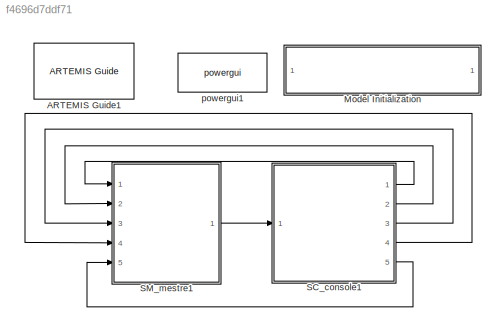
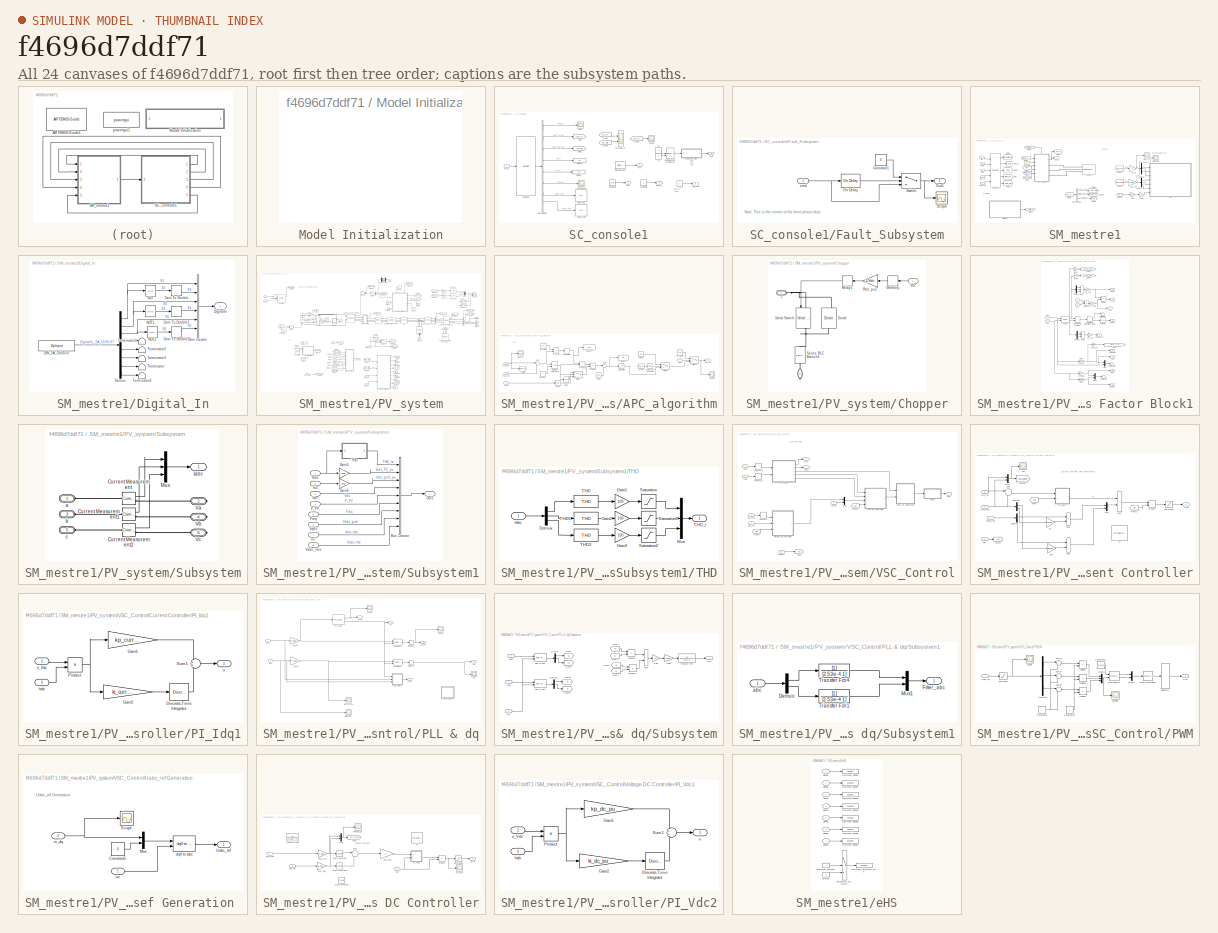
[diagram: thumbnail index - all 24 canvases of the model, root first then tree order]
MODEL slx_f4696d7ddf71
KIND model
CONFIG AbsTol = auto
CONFIG EnableMultiTasking = off
CONFIG FixedStep = 25e-6
CONFIG InitFcn = %clc; clear all; close all;\n%%%%%%%%%%%%%%%%%%%%%%%%%%%%%%%%%%%%%%%%%%%%%%%%\n%%%%%%%%% Solar seguidor de rede %%%%%%%%%%\n%%%%%%%%%%%%%%%%%%%%%%%%%%%%%%%%%%%%%%%%%%%%%%%%\n%%%% Nominal Parameters %%%%\nPnom = 16e3;                                         % Potencia Nominal\nVnom_rms = 210;                                    % V linha rms\nVnom_peak = sqrt(2/3)*Vnom_rms;                     % V fase pic...<+3469ch>
CONFIG MaxStep = auto
CONFIG MinStep = auto
CONFIG PostLoadFcn = %clc; clear all; close all;\n%%%%%%%%%%%%%%%%%%%%%%%%%%%%%%%%%%%%%%%%%%%%%%%%\n%%%%%%%%% Solar seguidor de rede %%%%%%%%%%\n%%%%%%%%%%%%%%%%%%%%%%%%%%%%%%%%%%%%%%%%%%%%%%%%\n%%%% Nominal Parameters %%%%\nPnom = 16e3;                                         % Potencia Nominal\nVnom_rms = 210;                                    % V linha rms\nVnom_peak = sqrt(2/3)*Vnom_rms;                     % V fase pic...<+3469ch>
CONFIG RelTol = 1e-3
CONFIG SampleTimeConstraint = Unconstrained
CONFIG SolverName = ode1
CONFIG StartTime = 0.0
CONFIG StopTime = inf
BLOCK [Reference] ARTEMIS Guide1  REF=artemis/ARTEMIS/ARTEMIS Guide
  Description = New ARTEMiS block v 7.5b (R2015b+)
  Ports = []
  SourceBlock = artemis/ARTEMIS/ARTEMIS Guide
  SourceType = ARTEMISmethode
  Tag = art7.5
BLOCK [SubSystem] Model Initialization
  AncestorBlock = artemis/Tools /Misc/Model Initialization
  CopyFcn = set_param(gcb,'LinkStatus','inactive')
  Ports = []
  RequestExecContextInheritance = off
BLOCK [SubSystem] SC_console1
  Ports = [1, 5]
  RequestExecContextInheritance = off
BLOCK [Outport] SC_console1/BRK_PV
  Port = 4
BLOCK [BusSelector] SC_console1/Bus Selector
  OutputSignals = THD_Ia,Iabc_PV_pu,Iabc_grid_pu,Vdc,P_PV,Freq,Iabc_rms,Vabc_rms
  Ports = [1, 8]
BLOCK [ManualSwitch] SC_console1/Command Fault (From 0 To 1)
  CurrentSetting = 0
BLOCK [Constant] SC_console1/Constant1
  Value = 16e3
BLOCK [Constant] SC_console1/Constant2
BLOCK [Scope] SC_console1/Currents_AC
  Floating = off
  NumInputPorts = 2
  Ports = [2]
  ScopeSpecificationString = Simulink.scopes.TimeScopeBlockCfg('CurrentConfiguration', extmgr.ConfigurationSet(extmgr.Configuration('Core','General UI',true),extmgr.Configuration('Core','Source UI',true),extmgr.Configuration('Sources','WiredSimulink',true,'DataLoggingVariableName','ScopeData6'),extmgr.Configuration('Visuals','Time Domain',true,'SerializedDisplays',{struct('MinYLimReal','-1.14935','MaxYLimReal','1.15303','YLab...<+2310ch>
BLOCK [Display] SC_console1/Display
  Decimation = 1
  Ports = [1]
BLOCK [Display] SC_console1/Display1
  Decimation = 1
  Ports = [1]
BLOCK [Outport] SC_console1/Fault
  Port = 2
BLOCK [SubSystem] SC_console1/Fault_Subsystem
  Ports = [1, 1]
  RequestExecContextInheritance = off
BLOCK [Constant] SC_console1/Fault_Subsystem/Constant1
  Value = 0
BLOCK [Reference] SC_console1/Fault_Subsystem/On Delay  REF=spsOnDelayLib/On Delay
  Ports = [1, 1]
  SourceBlock = spsOnDelayLib/On Delay
  SourceProductBaseCode = PS
  SourceType = On/Off Delay
BLOCK [Outport] SC_console1/Fault_Subsystem/Out1
BLOCK [Scope] SC_console1/Fault_Subsystem/Scope
  Floating = off
  NumInputPorts = 1
  Ports = [1]
  ScopeSpecificationString = Simulink.scopes.TimeScopeBlockCfg('CurrentConfiguration', extmgr.ConfigurationSet(extmgr.Configuration('Core','General UI',true),extmgr.Configuration('Core','Source UI',true),extmgr.Configuration('Sources','WiredSimulink',true,'DataLoggingVariableName','ScopeData1'),extmgr.Configuration('Visuals','Time Domain',true,'SerializedDisplays',{struct('MinYLimReal','-0.125','MaxYLimReal','1.125','YLabelRe...<+1407ch>
BLOCK [Switch] SC_console1/Fault_Subsystem/Switch
  Criteria = u2 > Threshold
  InputSameDT = off
  SaturateOnIntegerOverflow = off
BLOCK [Inport] SC_console1/Fault_Subsystem/cmd
BLOCK [Scope] SC_console1/Frequence
  Floating = off
  NumInputPorts = 1
  Ports = [1]
  ScopeSpecificationString = Simulink.scopes.TimeScopeBlockCfg('CurrentConfiguration', extmgr.ConfigurationSet(extmgr.Configuration('Core','General UI',true),extmgr.Configuration('Core','Source UI',true),extmgr.Configuration('Sources','WiredSimulink',true,'DataLoggingVariableName','ScopeData1'),extmgr.Configuration('Visuals','Time Domain',true,'SerializedDisplays',{struct('MinYLimReal','59.98864','MaxYLimReal','60.00996','YLa...<+1417ch>
BLOCK [From] SC_console1/From1
  GotoTag = Iabc_PV
BLOCK [From] SC_console1/From3
  GotoTag = Iabc_PV
BLOCK [From] SC_console1/From4
  GotoTag = Iabc_grid
BLOCK [Goto] SC_console1/Goto
  GotoTag = Iabc_PV
BLOCK [Goto] SC_console1/Goto1
  GotoTag = Iabc_grid
BLOCK [Display] SC_console1/Iabc_rms
  Decimation = 1
  NameLocation = right
  Ports = [1]
BLOCK [Outport] SC_console1/Irra
BLOCK [Reference] SC_console1/OpComm  REF=rtlab/OpComm
  Ports = [1, 1]
  SourceBlock = rtlab/OpComm
  SourceProductName = RT-LAB
  SourceType = RT-LAB OpComm
BLOCK [Inport] SC_console1/PV_m
BLOCK [Outport] SC_console1/Pref
  Port = 3
BLOCK [Scope] SC_console1/Scope
  Floating = off
  NumInputPorts = 1
  Ports = [1]
  ScopeSpecificationString = Simulink.scopes.TimeScopeBlockCfg('CurrentConfiguration', extmgr.ConfigurationSet(extmgr.Configuration('Core','General UI',true),extmgr.Configuration('Core','Source UI',true),extmgr.Configuration('Sources','WiredSimulink',true,'DataLoggingVariableName','Iabc_PV','DataLogging',true,'DataLoggingSaveFormat','StructureWithTime'),extmgr.Configuration('Visuals','Time Domain',true,'SerializedDisplays',{s...<+1589ch>
BLOCK [Reference] SC_console1/Stair Generator  REF=spsStairGeneratorLib/Stair
Generator
  Ports = [0, 1]
  SourceBlock = spsStairGeneratorLib/Stair\nGenerator
  SourceProductBaseCode = PS
  SourceType = Stair Generator
BLOCK [Scope] SC_console1/THD
  Floating = off
  NumInputPorts = 1
  Ports = [1]
  ScopeSpecificationString = Simulink.scopes.TimeScopeBlockCfg('CurrentConfiguration', extmgr.ConfigurationSet(extmgr.Configuration('Core','General UI',true),extmgr.Configuration('Core','Source UI',true),extmgr.Configuration('Sources','WiredSimulink',true,'DataLoggingVariableName','ScopeData2'),extmgr.Configuration('Visuals','Time Domain',true,'SerializedDisplays',{struct('MinYLimReal','-0.875','MaxYLimReal','7.875','YLabelRe...<+1454ch>
BLOCK [Display] SC_console1/Vabc_rms
  Decimation = 1
  NameLocation = right
  Ports = [1]
BLOCK [Constant] SC_console1/c1
BLOCK [Constant] SC_console1/c2
  Value = 0
BLOCK [Constant] SC_console1/c3
  Value = 0
BLOCK [Outport] SC_console1/cmd_CHIL
  Port = 5
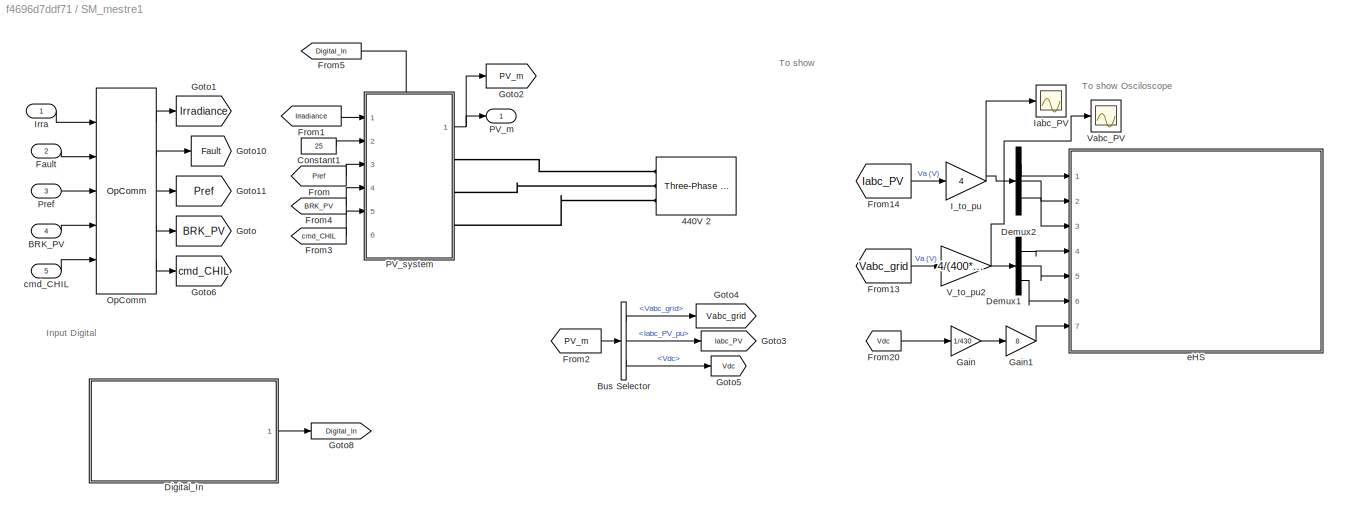
BLOCK [SubSystem] SM_mestre1
  Ports = [5, 1]
  RequestExecContextInheritance = off
BLOCK [Reference] SM_mestre1/440V 2  REF=spsThreePhaseSourceLib/Three-Phase Source
  Ports = [0, 0, 0, 0, 0, 0, 3]
  SourceBlock = spsThreePhaseSourceLib/Three-Phase Source
  SourceProductBaseCode = PS
  SourceType = Three-Phase Source
BLOCK [Inport] SM_mestre1/BRK_PV
  Port = 4
BLOCK [BusSelector] SM_mestre1/Bus Selector
  OutputSignals = Vabc_grid,Iabc_PV_pu,Vdc
  Ports = [1, 3]
BLOCK [Constant] SM_mestre1/Constant1
  Value = 25
BLOCK [Demux] SM_mestre1/Demux1
  Outputs = 3
  Ports = [1, 3]
BLOCK [Demux] SM_mestre1/Demux2
  Outputs = 3
  Ports = [1, 3]
BLOCK [SubSystem] SM_mestre1/Digital_In
  Ports = [0, 1]
  RequestExecContextInheritance = off
BLOCK [BusCreator] SM_mestre1/Digital_In/Bus Creator
  DisplayOption = bar
  InheritFromInputs = on
  Inputs = 6
  Ports = [6, 1]
BLOCK [DataTypeConversion] SM_mestre1/Digital_In/Cast To Double
  OutDataTypeStr = double
  RndMeth = Floor
  SaturateOnIntegerOverflow = off
BLOCK [DataTypeConversion] SM_mestre1/Digital_In/Cast To Double1
  OutDataTypeStr = double
  RndMeth = Floor
  SaturateOnIntegerOverflow = off
BLOCK [DataTypeConversion] SM_mestre1/Digital_In/Cast To Double2
  OutDataTypeStr = double
  RndMeth = Floor
  SaturateOnIntegerOverflow = off
BLOCK [Reference] SM_mestre1/Digital_In/DIN_2A_Ch00-07  REF=rtlab/OpInput
  Ports = [0, 1]
  SourceBlock = rtlab/OpInput
  SourceProductName = RT-LAB
  SourceType = RT-LAB OpInput
BLOCK [Demux] SM_mestre1/Digital_In/Demux
  Outputs = 8
  Ports = [1, 8]
BLOCK [Outport] SM_mestre1/Digital_In/DigitalIn
BLOCK [Logic] SM_mestre1/Digital_In/NOT
  AllPortsSameDT = off
  IconShape = distinctive
  Operator = NOT
  OutDataTypeStr = boolean
  Ports = [1, 1]
BLOCK [Logic] SM_mestre1/Digital_In/NOT1
  AllPortsSameDT = off
  IconShape = distinctive
  Operator = NOT
  OutDataTypeStr = boolean
  Ports = [1, 1]
BLOCK [Logic] SM_mestre1/Digital_In/NOT2
  AllPortsSameDT = off
  IconShape = distinctive
  Operator = NOT
  OutDataTypeStr = boolean
  Ports = [1, 1]
BLOCK [Terminator] SM_mestre1/Digital_In/Terminator
BLOCK [Terminator] SM_mestre1/Digital_In/Terminator1
BLOCK [Terminator] SM_mestre1/Digital_In/Terminator2
BLOCK [Terminator] SM_mestre1/Digital_In/Terminator3
BLOCK [Terminator] SM_mestre1/Digital_In/Terminator4
BLOCK [Inport] SM_mestre1/Fault
  Port = 2
BLOCK [From] SM_mestre1/From
  GotoTag = Pref
BLOCK [From] SM_mestre1/From1
  GotoTag = Irradiance
BLOCK [From] SM_mestre1/From13
  GotoTag = Vabc_grid
BLOCK [From] SM_mestre1/From14
  GotoTag = Iabc_PV
BLOCK [From] SM_mestre1/From2
  GotoTag = PV_m
BLOCK [From] SM_mestre1/From20
  GotoTag = Vdc
BLOCK [From] SM_mestre1/From3
  GotoTag = cmd_CHIL
BLOCK [From] SM_mestre1/From4
  GotoTag = BRK_PV
BLOCK [From] SM_mestre1/From5
  GotoTag = Digital_In
BLOCK [Gain] SM_mestre1/Gain
  Gain = 1/430
BLOCK [Gain] SM_mestre1/Gain1
  Gain = 8
BLOCK [Goto] SM_mestre1/Goto
  GotoTag = BRK_PV
BLOCK [Goto] SM_mestre1/Goto1
  GotoTag = Irradiance
BLOCK [Goto] SM_mestre1/Goto10
  GotoTag = Fault
BLOCK [Goto] SM_mestre1/Goto11
  GotoTag = Pref
BLOCK [Goto] SM_mestre1/Goto2
  GotoTag = PV_m
BLOCK [Goto] SM_mestre1/Goto3
  GotoTag = Iabc_PV
BLOCK [Goto] SM_mestre1/Goto4
  GotoTag = Vabc_grid
BLOCK [Goto] SM_mestre1/Goto5
  GotoTag = Vdc
BLOCK [Goto] SM_mestre1/Goto6
  GotoTag = cmd_CHIL
BLOCK [Goto] SM_mestre1/Goto8
  GotoTag = Digital_In
BLOCK [Gain] SM_mestre1/I_to_pu
  Gain = 4
  OutDataTypeStr = Inherit: Same as input
  ParamDataTypeStr = Inherit: Same as input
  SaturateOnIntegerOverflow = on
BLOCK [Scope] SM_mestre1/Iabc_PV
  Floating = off
  NumInputPorts = 1
  Ports = [1]
  ScopeSpecificationString = Simulink.scopes.TimeScopeBlockCfg('CurrentConfiguration', extmgr.ConfigurationSet(extmgr.Configuration('Core','General UI',true),extmgr.Configuration('Core','Source UI',true),extmgr.Configuration('Sources','WiredSimulink',true,'DataLoggingVariableName','ScopeData1'),extmgr.Configuration('Visuals','Time Domain',true,'SerializedDisplays',{struct('MinYLimReal','-4.40485','MaxYLimReal','4.42232','YLab...<+1468ch>
BLOCK [Inport] SM_mestre1/Irra
BLOCK [Reference] SM_mestre1/OpComm  REF=rtlab/OpComm
  Ports = [5, 5]
  SourceBlock = rtlab/OpComm
  SourceProductName = RT-LAB
  SourceType = RT-LAB OpComm
BLOCK [Outport] SM_mestre1/PV_m
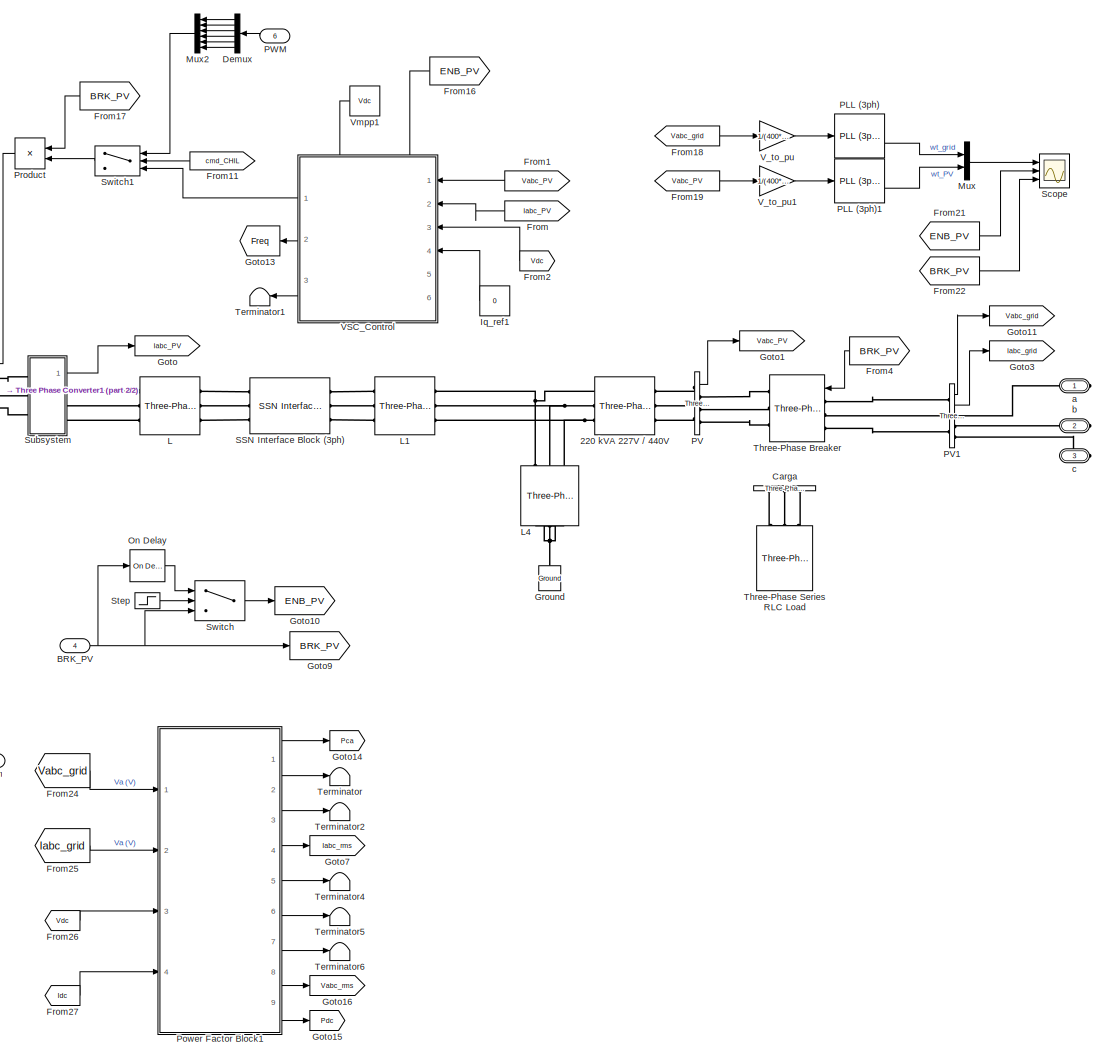
[diagram: SM_mestre1/PV_system - part 1/2, right side, full height]
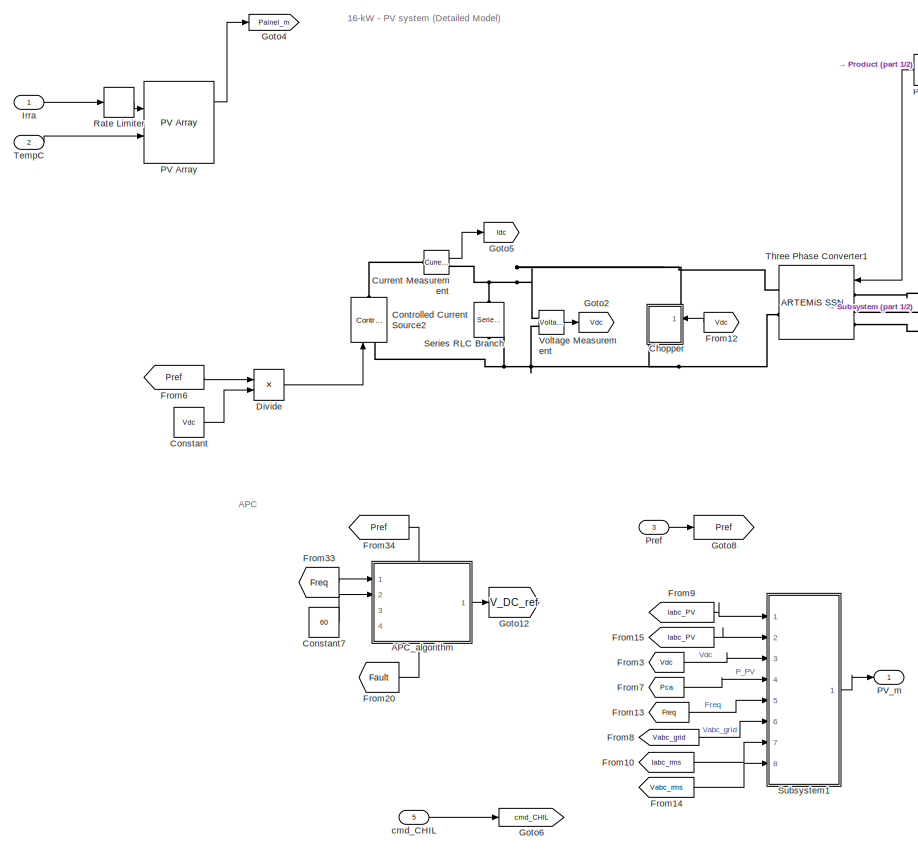
[diagram: SM_mestre1/PV_system - part 2/2, left side, full height]
BLOCK [SubSystem] SM_mestre1/PV_system
  PortSchema = {"entries":[{"content":{"sides":[{"content":{"connectorIds":["In1","In2","In3","In4","In5"]},"type":"ConnectorPlacement.EquallySpacedRectSide","uuid":"f9680090-159c-44c1-a82d-3351337b351d"},{"content":{"connectorIds":["Out1","RConn1","RConn2","RConn3"],"side":"RIGHT"},"type":"ConnectorPlacement.EquallySpacedRectSide","uuid":"a8520c85-fa09-4516-b22e-d1ac2b1a084c"},{"content":{"connectorIds":["In6"]...<+296ch>
  Ports = [6, 1, 0, 0, 0, 0, 3]
  RequestExecContextInheritance = off
BLOCK [Reference] SM_mestre1/PV_system/220 kVA 227V // 440V  REF=spsThreePhaseTransformerTwoWindingsLib/Three-Phase
Transformer
(Two Windings)
  AttributesFormatString = \n
  Ports = [0, 0, 0, 0, 0, 3, 3]
  SourceBlock = spsThreePhaseTransformerTwoWindingsLib/Three-Phase\nTransformer\n(Two Windings)
  SourceProductBaseCode = PS
  SourceType = Three-Phase Transformer (Two Windings)
BLOCK [SubSystem] SM_mestre1/PV_system/APC_algorithm
  Commented = on
  NameLocation = left
  PortSchema = {"entries":[{"content":{"sides":[{"content":{"connectorIds":["In1","In2"]},"type":"ConnectorPlacement.EquallySpacedRectSide","uuid":"40656380-5e11-4201-a16e-0974ed2bdfa3"},{"content":{"connectorIds":["Out1"],"side":"RIGHT"},"type":"ConnectorPlacement.EquallySpacedRectSide","uuid":"b720f4a2-445d-4911-b95b-a16e7ba2ef90"},{"content":{"connectorIds":["In3"],"side":"TOP"},"type":"ConnectorPlacement.Equ...<+544ch>
  Ports = [4, 1]
  RequestExecContextInheritance = off
BLOCK [Reference] SM_mestre1/PV_system/APC_algorithm/Compare To Constant2  REF=simulink/Logic and Bit
Operations/Compare
To Constant
  Ports = [1, 1]
  SourceBlock = simulink/Logic and Bit\nOperations/Compare\nTo Constant
  SourceProductBaseCode = SL
  SourceType = Compare To Constant
BLOCK [Constant] SM_mestre1/PV_system/APC_algorithm/Constant
  Value = 0
BLOCK [Constant] SM_mestre1/PV_system/APC_algorithm/Constant1
  Value = 200
BLOCK [Constant] SM_mestre1/PV_system/APC_algorithm/Constant2
  Value = 30
BLOCK [Display] SM_mestre1/PV_system/APC_algorithm/Display
  Decimation = 1
  Ports = [1]
BLOCK [Display] SM_mestre1/PV_system/APC_algorithm/Display3
  Decimation = 1
  Ports = [1]
BLOCK [Inport] SM_mestre1/PV_system/APC_algorithm/Enable
  Port = 3
BLOCK [Inport] SM_mestre1/PV_system/APC_algorithm/Fault
  Port = 4
BLOCK [Inport] SM_mestre1/PV_system/APC_algorithm/Freq_m
BLOCK [Inport] SM_mestre1/PV_system/APC_algorithm/Freq_ref
  Port = 2
BLOCK [From] SM_mestre1/PV_system/APC_algorithm/From
  GotoTag = freq_m
BLOCK [Goto] SM_mestre1/PV_system/APC_algorithm/Goto
  GotoTag = freq_m
BLOCK [Logic] SM_mestre1/PV_system/APC_algorithm/NOT1
  AllPortsSameDT = off
  IconShape = distinctive
  Operator = NOT
  OutDataTypeStr = boolean
  Ports = [1, 1]
BLOCK [Logic] SM_mestre1/PV_system/APC_algorithm/NOT2
  AllPortsSameDT = off
  IconShape = distinctive
  Operator = NOT
  OutDataTypeStr = boolean
  Ports = [1, 1]
BLOCK [Product] SM_mestre1/PV_system/APC_algorithm/Product1
  Ports = [2, 1]
BLOCK [Product] SM_mestre1/PV_system/APC_algorithm/Product2
  Ports = [2, 1]
BLOCK [Product] SM_mestre1/PV_system/APC_algorithm/Product3
  Ports = [2, 1]
BLOCK [RateLimiter] SM_mestre1/PV_system/APC_algorithm/Rate Limiter1
  FallingSlewLimit = -200
  RisingSlewLimit = 200
  SampleTimeMode = inherited
BLOCK [RelationalOperator] SM_mestre1/PV_system/APC_algorithm/Relational Operator1
  InputSameDT = off
  OutDataTypeStr = boolean
  Ports = [2, 1]
  RndMeth = Simplest
BLOCK [Saturate] SM_mestre1/PV_system/APC_algorithm/Saturation
  LowerLimit = 0
  UpperLimit = 580
BLOCK [Scope] SM_mestre1/PV_system/APC_algorithm/Scope
  Floating = off
  NumInputPorts = 1
  Ports = [1]
  ScopeSpecificationString = Simulink.scopes.TimeScopeBlockCfg('CurrentConfiguration', extmgr.ConfigurationSet(extmgr.Configuration('Core','General UI',true),extmgr.Configuration('Core','Source UI',true),extmgr.Configuration('Sources','WiredSimulink',true,'DataLoggingVariableName','ScopeData7'),extmgr.Configuration('Visuals','Time Domain',true,'SerializedDisplays',{struct('MinYLimReal','325.99822','MaxYLimReal','525.99822','Y...<+1405ch>
BLOCK [Sum] SM_mestre1/PV_system/APC_algorithm/Sum
  Inputs = |+-
  Ports = [2, 1]
BLOCK [Sum] SM_mestre1/PV_system/APC_algorithm/Sum1
  Inputs = |++
  Ports = [2, 1]
BLOCK [Switch] SM_mestre1/PV_system/APC_algorithm/Switch1
  Criteria = u2 > Threshold
  InputSameDT = off
  SaturateOnIntegerOverflow = off
BLOCK [Switch] SM_mestre1/PV_system/APC_algorithm/Switch2
  Criteria = u2 > Threshold
  InputSameDT = off
  SaturateOnIntegerOverflow = off
BLOCK [Switch] SM_mestre1/PV_system/APC_algorithm/Switch3
  Criteria = u2 > Threshold
  InputSameDT = off
  SaturateOnIntegerOverflow = off
BLOCK [Outport] SM_mestre1/PV_system/APC_algorithm/Vdc_ref
BLOCK [Constant] SM_mestre1/PV_system/APC_algorithm/Vmpp
  Value = 425
BLOCK [Constant] SM_mestre1/PV_system/APC_algorithm/Vmpp1
  Value = Vdc
BLOCK [Scope] SM_mestre1/PV_system/APC_algorithm/freq_m
  Floating = off
  NumInputPorts = 1
  Ports = [1]
  ScopeSpecificationString = Simulink.scopes.TimeScopeBlockCfg('CurrentConfiguration', extmgr.ConfigurationSet(extmgr.Configuration('Core','General UI',true),extmgr.Configuration('Core','Source UI',true),extmgr.Configuration('Sources','WiredSimulink',true,'DataLoggingVariableName','freq_m','DataLogging',true,'DataLoggingSaveFormat','StructureWithTime'),extmgr.Configuration('Visuals','Time Domain',true,'SerializedDisplays',{st...<+1455ch>
BLOCK [Inport] SM_mestre1/PV_system/BRK_PV
  Port = 4
BLOCK [Reference] SM_mestre1/PV_system/Carga  REF=spsThreePhaseVIMeasurementLib/Three-Phase
V-I Measurement
  Commented = on
  NameLocation = left
  Ports = [0, 0, 0, 0, 0, 3, 3]
  SourceBlock = spsThreePhaseVIMeasurementLib/Three-Phase\nV-I Measurement
  SourceProductBaseCode = PS
  SourceType = Three-Phase VI Measurement
BLOCK [SubSystem] SM_mestre1/PV_system/Chopper
  PortSchema = {"entries":[{"content":{"sides":[{"content":{"connectorIds":["In1"]},"type":"ConnectorPlacement.EquallySpacedRectSide","uuid":"afae15e8-9223-41bd-a608-c674f09af6e2"},{"content":{"connectorIds":[],"side":"RIGHT"},"type":"ConnectorPlacement.EquallySpacedRectSide","uuid":"cb9b7558-c628-44d0-80da-cf5d18275618"},{"content":{"connectorIds":["LConn1"],"side":"TOP"},"type":"ConnectorPlacement.EquallySpace...<+538ch>
  Ports = [1, 0, 0, 0, 0, 1, 1]
  RequestExecContextInheritance = off
BLOCK [PMIOPort] SM_mestre1/PV_system/Chopper/+
  Side = Left
BLOCK [PMIOPort] SM_mestre1/PV_system/Chopper/-
  NameLocation = left
  Port = 2
  Side = Right
BLOCK [Reference] SM_mestre1/PV_system/Chopper/Diode  REF=spsDiodeLib/Diode
  NameLocation = right
  Ports = [0, 1, 0, 0, 0, 1, 1]
  SourceBlock = spsDiodeLib/Diode
  SourceProductBaseCode = PS
  SourceType = Diode
BLOCK [Reference] SM_mestre1/PV_system/Chopper/Ideal Switch  REF=spsIdealSwitchLib/Ideal Switch
  NameLocation = left
  Ports = [1, 1, 0, 0, 0, 1, 1]
  SourceBlock = spsIdealSwitchLib/Ideal Switch
  SourceProductBaseCode = PS
  SourceType = Ideal Switch
BLOCK [Memory] SM_mestre1/PV_system/Chopper/Memory
BLOCK [Relay] SM_mestre1/PV_system/Chopper/Relay1
  OffSwitchValue = 1.0
  OnSwitchValue = 1.1
BLOCK [Gain] SM_mestre1/PV_system/Chopper/Rtot_pu2
  Gain = 1/Vdc
  OutDataTypeStr = Inherit: Same as input
  ParamDataTypeStr = Inherit: Same as input
  SaturateOnIntegerOverflow = on
BLOCK [Reference] SM_mestre1/PV_system/Chopper/Series RLC Branch1  REF=spsSeriesRLCBranchLib/Series RLC Branch
  NameLocation = left
  Ports = [0, 0, 0, 0, 0, 1, 1]
  SourceBlock = spsSeriesRLCBranchLib/Series RLC Branch
  SourceProductBaseCode = PS
  SourceType = Series RLC Branch
BLOCK [Inport] SM_mestre1/PV_system/Chopper/Vdc
BLOCK [Constant] SM_mestre1/PV_system/Constant
  Value = Vdc
BLOCK [Constant] SM_mestre1/PV_system/Constant7
  Commented = on
  Value = 60
BLOCK [Reference] SM_mestre1/PV_system/Controlled Current Source2  REF=spsControlledCurrentSourceLib/Controlled Current Source
  Ports = [1, 0, 0, 0, 0, 1, 1]
  SourceBlock = spsControlledCurrentSourceLib/Controlled Current Source
  SourceProductBaseCode = PS
  SourceType = Controlled Current Source
BLOCK [Reference] SM_mestre1/PV_system/Current Measurement  REF=spsCurrentMeasurementLib/Current Measurement
  Ports = [0, 1, 0, 0, 0, 1, 1]
  SourceBlock = spsCurrentMeasurementLib/Current Measurement
  SourceProductBaseCode = PS
  SourceType = Current Measurement
  UserDataPersistent = on
BLOCK [Demux] SM_mestre1/PV_system/Demux
  Outputs = 6
  Ports = [1, 6]
BLOCK [Product] SM_mestre1/PV_system/Divide
  Inputs = */
  Ports = [2, 1]
BLOCK [From] SM_mestre1/PV_system/From
  GotoTag = Iabc_PV
BLOCK [From] SM_mestre1/PV_system/From1
  GotoTag = Vabc_PV
BLOCK [From] SM_mestre1/PV_system/From10
  GotoTag = Iabc_rms
BLOCK [From] SM_mestre1/PV_system/From11
  GotoTag = cmd_CHIL
BLOCK [From] SM_mestre1/PV_system/From12
  GotoTag = Vdc
BLOCK [From] SM_mestre1/PV_system/From13
  GotoTag = Freq
BLOCK [From] SM_mestre1/PV_system/From14
  GotoTag = Vabc_rms
BLOCK [From] SM_mestre1/PV_system/From15
  GotoTag = Iabc_PV
BLOCK [From] SM_mestre1/PV_system/From16
  GotoTag = ENB_PV
BLOCK [From] SM_mestre1/PV_system/From17
  GotoTag = BRK_PV
BLOCK [From] SM_mestre1/PV_system/From18
  GotoTag = Vabc_grid
BLOCK [From] SM_mestre1/PV_system/From19
  GotoTag = Vabc_PV
BLOCK [From] SM_mestre1/PV_system/From2
  GotoTag = Vdc
BLOCK [From] SM_mestre1/PV_system/From20
  Commented = on
  GotoTag = Fault
BLOCK [From] SM_mestre1/PV_system/From21
  GotoTag = ENB_PV
BLOCK [From] SM_mestre1/PV_system/From22
  GotoTag = BRK_PV
BLOCK [From] SM_mestre1/PV_system/From24
  GotoTag = Vabc_grid
BLOCK [From] SM_mestre1/PV_system/From25
  GotoTag = Iabc_grid
BLOCK [From] SM_mestre1/PV_system/From26
  GotoTag = Vdc
BLOCK [From] SM_mestre1/PV_system/From27
  GotoTag = Idc
BLOCK [From] SM_mestre1/PV_system/From3
  GotoTag = Vdc
BLOCK [From] SM_mestre1/PV_system/From33
  Commented = on
  GotoTag = Freq
BLOCK [From] SM_mestre1/PV_system/From34
  Commented = on
  GotoTag = Pref
BLOCK [From] SM_mestre1/PV_system/From4
  GotoTag = BRK_PV
BLOCK [From] SM_mestre1/PV_system/From6
  GotoTag = Pref
BLOCK [From] SM_mestre1/PV_system/From7
  GotoTag = Pca
BLOCK [From] SM_mestre1/PV_system/From8
  GotoTag = Vabc_grid
BLOCK [From] SM_mestre1/PV_system/From9
  GotoTag = Iabc_PV
BLOCK [Goto] SM_mestre1/PV_system/Goto
  GotoTag = Iabc_PV
BLOCK [Goto] SM_mestre1/PV_system/Goto1
  GotoTag = Vabc_PV
BLOCK [Goto] SM_mestre1/PV_system/Goto10
  GotoTag = ENB_PV
BLOCK [Goto] SM_mestre1/PV_system/Goto11
  GotoTag = Vabc_grid
BLOCK [Goto] SM_mestre1/PV_system/Goto12
  Commented = on
  GotoTag = V_DC_ref
BLOCK [Goto] SM_mestre1/PV_system/Goto13
  GotoTag = Freq
BLOCK [Goto] SM_mestre1/PV_system/Goto14
  GotoTag = Pca
BLOCK [Goto] SM_mestre1/PV_system/Goto15
  GotoTag = Pdc
BLOCK [Goto] SM_mestre1/PV_system/Goto16
  GotoTag = Vabc_rms
BLOCK [Goto] SM_mestre1/PV_system/Goto2
  GotoTag = Vdc
BLOCK [Goto] SM_mestre1/PV_system/Goto3
  GotoTag = Iabc_grid
BLOCK [Goto] SM_mestre1/PV_system/Goto4
  Commented = on
  GotoTag = Painel_m
  TagVisibility = global
BLOCK [Goto] SM_mestre1/PV_system/Goto5
  GotoTag = Idc
BLOCK [Goto] SM_mestre1/PV_system/Goto6
  GotoTag = cmd_CHIL
BLOCK [Goto] SM_mestre1/PV_system/Goto7
  GotoTag = Iabc_rms
BLOCK [Goto] SM_mestre1/PV_system/Goto8
  GotoTag = Pref
BLOCK [Goto] SM_mestre1/PV_system/Goto9
  GotoTag = BRK_PV
BLOCK [Reference] SM_mestre1/PV_system/Ground  REF=spsGroundLib/Ground
  NameLocation = right
  Ports = [0, 0, 0, 0, 0, 1]
  SourceBlock = spsGroundLib/Ground
  SourceProductBaseCode = PS
  SourceType = Ground
BLOCK [Constant] SM_mestre1/PV_system/Iq_ref1
  Value = 0
BLOCK [Inport] SM_mestre1/PV_system/Irra
BLOCK [Reference] SM_mestre1/PV_system/L  REF=spsThreePhaseSeriesRLCBranchLib/Three-Phase
Series RLC Branch
  AttributesFormatString = \n
  Ports = [0, 0, 0, 0, 0, 3, 3]
  SourceBlock = spsThreePhaseSeriesRLCBranchLib/Three-Phase\nSeries RLC Branch
  SourceProductBaseCode = PS
  SourceType = Three-Phase Series RLC Branch
BLOCK [Reference] SM_mestre1/PV_system/L1  REF=spsThreePhaseSeriesRLCBranchLib/Three-Phase
Series RLC Branch
  AttributesFormatString = \n
  Ports = [0, 0, 0, 0, 0, 3, 3]
  SourceBlock = spsThreePhaseSeriesRLCBranchLib/Three-Phase\nSeries RLC Branch
  SourceProductBaseCode = PS
  SourceType = Three-Phase Series RLC Branch
BLOCK [Reference] SM_mestre1/PV_system/L4  REF=spsThreePhaseSeriesRLCBranchLib/Three-Phase
Series RLC Branch
  AttributesFormatString = \n
  NameLocation = left
  Ports = [0, 0, 0, 0, 0, 3, 3]
  SourceBlock = spsThreePhaseSeriesRLCBranchLib/Three-Phase\nSeries RLC Branch
  SourceProductBaseCode = PS
  SourceType = Three-Phase Series RLC Branch
BLOCK [Mux] SM_mestre1/PV_system/Mux
  DisplayOption = bar
  Inputs = 2
  Ports = [2, 1]
BLOCK [Mux] SM_mestre1/PV_system/Mux2
  DisplayOption = bar
  Inputs = 6
  Ports = [6, 1]
BLOCK [Reference] SM_mestre1/PV_system/On Delay  REF=spsOnDelayLib/On Delay
  Ports = [1, 1]
  SourceBlock = spsOnDelayLib/On Delay
  SourceProductBaseCode = PS
  SourceType = On/Off Delay
BLOCK [Reference] SM_mestre1/PV_system/PLL (3ph)  REF=spsPLL3phLib/PLL
(3ph)
  Ports = [1, 2]
  SourceBlock = spsPLL3phLib/PLL\n(3ph)
  SourceProductBaseCode = PS
  SourceType = PLL (3ph)
BLOCK [Reference] SM_mestre1/PV_system/PLL (3ph)1  REF=spsPLL3phLib/PLL
(3ph)
  Ports = [1, 2]
  SourceBlock = spsPLL3phLib/PLL\n(3ph)
  SourceProductBaseCode = PS
  SourceType = PLL (3ph)
BLOCK [Reference] SM_mestre1/PV_system/PV  REF=spsThreePhaseVIMeasurementLib/Three-Phase
V-I Measurement
  Ports = [0, 1, 0, 0, 0, 3, 3]
  SourceBlock = spsThreePhaseVIMeasurementLib/Three-Phase\nV-I Measurement
  SourceProductBaseCode = PS
  SourceType = Three-Phase VI Measurement
BLOCK [Reference] SM_mestre1/PV_system/PV Array  REF=spsPVArrayLib/PV Array
  AttributesFormatString = %<ModuleName>\n%<Nser>-module string\n%<Npar> parallel strings
  Commented = on
  Ports = [2, 1, 0, 0, 0, 0, 2]
  SourceBlock = spsPVArrayLib/PV Array
  SourceProductBaseCode = PS
  SourceType = PV array
BLOCK [Reference] SM_mestre1/PV_system/PV1  REF=spsThreePhaseVIMeasurementLib/Three-Phase
V-I Measurement
  Ports = [0, 2, 0, 0, 0, 3, 3]
  SourceBlock = spsThreePhaseVIMeasurementLib/Three-Phase\nV-I Measurement
  SourceProductBaseCode = PS
  SourceType = Three-Phase VI Measurement
BLOCK [Outport] SM_mestre1/PV_system/PV_m
BLOCK [Inport] SM_mestre1/PV_system/PWM
  Port = 6
BLOCK [SubSystem] SM_mestre1/PV_system/Power Factor Block1
  Ports = [4, 9]
  RequestExecContextInheritance = off
BLOCK [ComplexToMagnitudeAngle] SM_mestre1/PV_system/Power Factor Block1/Complex to Magnitude-Angle
  Ports = [1, 2]
BLOCK [Gain] SM_mestre1/PV_system/Power Factor Block1/Conv pu1
  Commented = on
  Gain = sqrt (3) /400
  OutDataTypeStr = Inherit: Same as input
  ParamDataTypeStr = Inherit: Same as input
  SaturateOnIntegerOverflow = on
BLOCK [Goto] SM_mestre1/PV_system/Power Factor Block1/Current
  Commented = on
  GotoTag = Vabc_LL_pu_BusGrid1
  TagVisibility = global
BLOCK [Goto] SM_mestre1/PV_system/Power Factor Block1/Current3
  Commented = on
  GotoTag = P_abc_BusGrid
  TagVisibility = global
BLOCK [Goto] SM_mestre1/PV_system/Power Factor Block1/Current4
  Commented = on
  GotoTag = Q_abc_BusGrid
  TagVisibility = global
BLOCK [Demux] SM_mestre1/PV_system/Power Factor Block1/Demux
  Outputs = 3
  Ports = [1, 3]
BLOCK [Demux] SM_mestre1/PV_system/Power Factor Block1/Demux1
  Outputs = 3
  Ports = [1, 3]
BLOCK [Product] SM_mestre1/PV_system/Power Factor Block1/Divide
  Inputs = */
  Ports = [2, 1]
BLOCK [Outport] SM_mestre1/PV_system/Power Factor Block1/I abc
  Port = 7
  VectorParamsAs1DForOutWhenUnconnected = off
BLOCK [Inport] SM_mestre1/PV_system/Power Factor Block1/Iabc
  Port = 2
BLOCK [Outport] SM_mestre1/PV_system/Power Factor Block1/Iabc(rms)
  Port = 4
  VectorParamsAs1DForOutWhenUnconnected = off
BLOCK [Inport] SM_mestre1/PV_system/Power Factor Block1/Idc
  Port = 4
BLOCK [Mux] SM_mestre1/PV_system/Power Factor Block1/Mux
  DisplayOption = bar
  Inputs = 2
  Ports = [2, 1]
BLOCK [Mux] SM_mestre1/PV_system/Power Factor Block1/Mux1
  DisplayOption = bar
  Inputs = 2
  Ports = [2, 1]
BLOCK [Outport] SM_mestre1/PV_system/Power Factor Block1/P(kW)
  VectorParamsAs1DForOutWhenUnconnected = off
BLOCK [Outport] SM_mestre1/PV_system/Power Factor Block1/PFabc 
  Port = 5
  VectorParamsAs1DForOutWhenUnconnected = off
BLOCK [Outport] SM_mestre1/PV_system/Power Factor Block1/Pdc
  Port = 9
BLOCK [Reference] SM_mestre1/PV_system/Power Factor Block1/Power  REF=spsPowerLib/Power
  Ports = [2, 2]
  SourceBlock = spsPowerLib/Power
  SourceProductBaseCode = PS
  SourceType = Power
BLOCK [Product] SM_mestre1/PV_system/Power Factor Block1/Product2
  Ports = [2, 1]
BLOCK [Outport] SM_mestre1/PV_system/Power Factor Block1/Qabc(kVAr)
  Port = 2
  VectorParamsAs1DForOutWhenUnconnected = off
BLOCK [Reference] SM_mestre1/PV_system/Power Factor Block1/RMS3  REF=spsRMSLib/RMS
  Ports = [1, 1]
  SourceBlock = spsRMSLib/RMS
  SourceProductBaseCode = PS
  SourceType = RMS
BLOCK [Reference] SM_mestre1/PV_system/Power Factor Block1/RMS4  REF=spsRMSLib/RMS
  Ports = [1, 1]
  SourceBlock = spsRMSLib/RMS
  SourceProductBaseCode = PS
  SourceType = RMS
BLOCK [RealImagToComplex] SM_mestre1/PV_system/Power Factor Block1/Real-Imag to Complex
  Ports = [2, 1]
BLOCK [Sum] SM_mestre1/PV_system/Power Factor Block1/Sum
  IconShape = rectangular
  Inputs = +++
  Ports = [3, 1]
BLOCK [Sum] SM_mestre1/PV_system/Power Factor Block1/Sum1
  IconShape = rectangular
  Inputs = +++
  Ports = [3, 1]
BLOCK [Terminator] SM_mestre1/PV_system/Power Factor Block1/Terminator
BLOCK [Terminator] SM_mestre1/PV_system/Power Factor Block1/Terminator1
BLOCK [Terminator] SM_mestre1/PV_system/Power Factor Block1/Terminator2
BLOCK [Gain] SM_mestre1/PV_system/Power Factor Block1/To_kVAr
  Gain = 1/1e3
BLOCK [Gain] SM_mestre1/PV_system/Power Factor Block1/To_kW
  Gain = 1/1e3
BLOCK [Gain] SM_mestre1/PV_system/Power Factor Block1/To_kW1
  Gain = 1/1e3
BLOCK [Outport] SM_mestre1/PV_system/Power Factor Block1/V abc
  Port = 6
  VectorParamsAs1DForOutWhenUnconnected = off
BLOCK [Inport] SM_mestre1/PV_system/Power Factor Block1/Vabc
BLOCK [Outport] SM_mestre1/PV_system/Power Factor Block1/Vabc(rms)
  Port = 8
  VectorParamsAs1DForOutWhenUnconnected = off
BLOCK [Inport] SM_mestre1/PV_system/Power Factor Block1/Vdc
  Port = 3
BLOCK [Gain] SM_mestre1/PV_system/Power Factor Block1/compara
  OutDataTypeStr = Inherit: Same as input
  ParamDataTypeStr = Inherit: Same as input
  SaturateOnIntegerOverflow = on
BLOCK [Trigonometry] SM_mestre1/PV_system/Power Factor Block1/cos(theta)
  Operator = cos
  Ports = [1, 1]
BLOCK [Outport] SM_mestre1/PV_system/Power Factor Block1/n_PV
  Port = 3
BLOCK [Gain] SM_mestre1/PV_system/Power Factor Block1/to Kw
  Commented = on
  Gain = -1/1000
BLOCK [Gain] SM_mestre1/PV_system/Power Factor Block1/to Kw1
  Commented = on
  Gain = -1/1000
BLOCK [Inport] SM_mestre1/PV_system/Pref
  Port = 3
BLOCK [Product] SM_mestre1/PV_system/Product
  Ports = [2, 1]
BLOCK [RateLimiter] SM_mestre1/PV_system/Rate Limiter
  Commented = on
  FallingSlewLimit = -5000
  LinearizeAsGain = off
  RisingSlewLimit = 5000
  SampleTimeMode = inherited
BLOCK [Reference] SM_mestre1/PV_system/SSN Interface Block (3ph)  REF=artemis/SSN/Nodal Interface Blocks/SSN Interface Block (3ph)
  Ports = [0, 0, 0, 0, 0, 3, 3]
  SourceBlock = artemis/SSN/Nodal Interface Blocks/SSN Interface Block (3ph)
  SourceType = ARTEMiS-SSN Nodal interface Blocks
BLOCK [Scope] SM_mestre1/PV_system/Scope
  Floating = off
  NumInputPorts = 3
  Ports = [3]
  ScopeSpecificationString = Simulink.scopes.TimeScopeBlockCfg('CurrentConfiguration', extmgr.ConfigurationSet(extmgr.Configuration('Core','General UI',true),extmgr.Configuration('Core','Source UI',true),extmgr.Configuration('Sources','WiredSimulink',true,'DataLoggingVariableName','ScopeData1'),extmgr.Configuration('Visuals','Time Domain',true,'SerializedDisplays',{struct('MinYLimReal','-0.36757','MaxYLimReal','6.67435','YLab...<+2148ch>
BLOCK [Reference] SM_mestre1/PV_system/Series RLC Branch  REF=spsSeriesRLCBranchLib/Series RLC Branch
  NameLocation = left
  Ports = [0, 0, 0, 0, 0, 1, 1]
  SourceBlock = spsSeriesRLCBranchLib/Series RLC Branch
  SourceProductBaseCode = PS
  SourceType = Series RLC Branch
BLOCK [Step] SM_mestre1/PV_system/Step
  SampleTime = 0
  Time = 0.5
BLOCK [SubSystem] SM_mestre1/PV_system/Subsystem
  Ports = [0, 1, 0, 0, 0, 3, 3]
  RequestExecContextInheritance = off
BLOCK [Reference] SM_mestre1/PV_system/Subsystem/Current Measurement  REF=spsCurrentMeasurementLib/Current Measurement
  Ports = [0, 1, 0, 0, 0, 1, 1]
  SourceBlock = spsCurrentMeasurementLib/Current Measurement
  SourceProductBaseCode = PS
  SourceType = Current Measurement
  UserDataPersistent = on
BLOCK [Reference] SM_mestre1/PV_system/Subsystem/Current Measurement1  REF=spsCurrentMeasurementLib/Current Measurement
  Ports = [0, 1, 0, 0, 0, 1, 1]
  SourceBlock = spsCurrentMeasurementLib/Current Measurement
  SourceProductBaseCode = PS
  SourceType = Current Measurement
  UserDataPersistent = on
BLOCK [Reference] SM_mestre1/PV_system/Subsystem/Current Measurement2  REF=spsCurrentMeasurementLib/Current Measurement
  Ports = [0, 1, 0, 0, 0, 1, 1]
  SourceBlock = spsCurrentMeasurementLib/Current Measurement
  SourceProductBaseCode = PS
  SourceType = Current Measurement
  UserDataPersistent = on
BLOCK [Outport] SM_mestre1/PV_system/Subsystem/Iabc
BLOCK [Mux] SM_mestre1/PV_system/Subsystem/Mux
  DisplayOption = bar
  Inputs = 3
  Ports = [3, 1]
BLOCK [PMIOPort] SM_mestre1/PV_system/Subsystem/Va
  Port = 2
  Side = Right
BLOCK [PMIOPort] SM_mestre1/PV_system/Subsystem/Vb
  Port = 4
  Side = Right
BLOCK [PMIOPort] SM_mestre1/PV_system/Subsystem/Vc
  Port = 6
  Side = Right
BLOCK [PMIOPort] SM_mestre1/PV_system/Subsystem/a
  Side = Left
BLOCK [PMIOPort] SM_mestre1/PV_system/Subsystem/b
  Port = 3
  Side = Left
BLOCK [PMIOPort] SM_mestre1/PV_system/Subsystem/c
  Port = 5
  Side = Left
BLOCK [SubSystem] SM_mestre1/PV_system/Subsystem1
  Ports = [8, 1]
  RequestExecContextInheritance = off
BLOCK [BusCreator] SM_mestre1/PV_system/Subsystem1/Bus Creator
  DisplayOption = bar
  InheritFromInputs = on
  Inputs = 9
  Ports = [9, 1]
BLOCK [Inport] SM_mestre1/PV_system/Subsystem1/Freq
  Port = 5
BLOCK [Gain] SM_mestre1/PV_system/Subsystem1/Gain5
  Gain = 1/(Ibase*1.27)
BLOCK [Gain] SM_mestre1/PV_system/Subsystem1/Gain6
  Gain = 1/(Ibase*1.15)
BLOCK [Inport] SM_mestre1/PV_system/Subsystem1/Iabc
BLOCK [Inport] SM_mestre1/PV_system/Subsystem1/In2
  Port = 2
BLOCK [Inport] SM_mestre1/PV_system/Subsystem1/In7
  Port = 7
BLOCK [Outport] SM_mestre1/PV_system/Subsystem1/Out1
BLOCK [Inport] SM_mestre1/PV_system/Subsystem1/P_PV
  Port = 4
BLOCK [SubSystem] SM_mestre1/PV_system/Subsystem1/THD
  Ports = [1, 1]
  RequestExecContextInheritance = off
BLOCK [Demux] SM_mestre1/PV_system/Subsystem1/THD/Demux
  Outputs = 3
  Ports = [1, 3]
BLOCK [Gain] SM_mestre1/PV_system/Subsystem1/THD/Gain1
  Gain = 100
BLOCK [Gain] SM_mestre1/PV_system/Subsystem1/THD/Gain2
  Gain = 100
BLOCK [Gain] SM_mestre1/PV_system/Subsystem1/THD/Gain3
  Gain = 100
BLOCK [Inport] SM_mestre1/PV_system/Subsystem1/THD/Iabc
BLOCK [Mux] SM_mestre1/PV_system/Subsystem1/THD/Mux
  DisplayOption = bar
  Inputs = 3
  Ports = [3, 1]
BLOCK [Saturate] SM_mestre1/PV_system/Subsystem1/THD/Saturation
  UpperLimit = 7
BLOCK [Saturate] SM_mestre1/PV_system/Subsystem1/THD/Saturation1
  UpperLimit = 7
BLOCK [Saturate] SM_mestre1/PV_system/Subsystem1/THD/Saturation2
  UpperLimit = 7
BLOCK [Reference] SM_mestre1/PV_system/Subsystem1/THD/THD  REF=spsTHDLib/THD
  Ports = [1, 1]
  SourceBlock = spsTHDLib/THD
  SourceProductBaseCode = PS
  SourceType = THD
BLOCK [Reference] SM_mestre1/PV_system/Subsystem1/THD/THD1  REF=spsTHDLib/THD
  Ports = [1, 1]
  SourceBlock = spsTHDLib/THD
  SourceProductBaseCode = PS
  SourceType = THD
BLOCK [Reference] SM_mestre1/PV_system/Subsystem1/THD/THD2  REF=spsTHDLib/THD
  Ports = [1, 1]
  SourceBlock = spsTHDLib/THD
  SourceProductBaseCode = PS
  SourceType = THD
BLOCK [Outport] SM_mestre1/PV_system/Subsystem1/THD/THD_I
BLOCK [Inport] SM_mestre1/PV_system/Subsystem1/Vabc
  Port = 6
BLOCK [Inport] SM_mestre1/PV_system/Subsystem1/Vabc_rms
  Port = 8
BLOCK [Inport] SM_mestre1/PV_system/Subsystem1/Vdc
  Port = 3
BLOCK [Switch] SM_mestre1/PV_system/Switch
  Criteria = u2 > Threshold
  InputSameDT = off
  SaturateOnIntegerOverflow = off
BLOCK [Switch] SM_mestre1/PV_system/Switch1
  Criteria = u2 > Threshold
  InputSameDT = off
  SaturateOnIntegerOverflow = off
BLOCK [Inport] SM_mestre1/PV_system/TempC
  Port = 2
BLOCK [Terminator] SM_mestre1/PV_system/Terminator
BLOCK [Terminator] SM_mestre1/PV_system/Terminator1
BLOCK [Terminator] SM_mestre1/PV_system/Terminator2
BLOCK [Terminator] SM_mestre1/PV_system/Terminator4
BLOCK [Terminator] SM_mestre1/PV_system/Terminator5
BLOCK [Terminator] SM_mestre1/PV_system/Terminator6
BLOCK [Reference] SM_mestre1/PV_system/Three Phase Converter1  REF=ssn_inverter_model/ARTEMiS SSN
IVIC
  NameLocation = top
  Ports = [1, 0, 0, 0, 0, 3, 2]
  SourceBlock = ssn_inverter_model/ARTEMiS SSN\nIVIC
  SourceType = Universal Bridge
BLOCK [Reference] SM_mestre1/PV_system/Three-Phase Breaker  REF=spsThreePhaseBreakerLib/Three-Phase Breaker
  Ports = [1, 0, 0, 0, 0, 3, 3]
  SourceBlock = spsThreePhaseBreakerLib/Three-Phase Breaker
  SourceProductBaseCode = PS
  SourceType = Three-Phase Breaker
BLOCK [Reference] SM_mestre1/PV_system/Three-Phase Series RLC Load  REF=spsThreePhaseSeriesRLCLoadLib/Three-Phase
Series RLC Load
  AttributesFormatString = \n
  Commented = on
  NameLocation = right
  Ports = [0, 0, 0, 0, 0, 3]
  SourceBlock = spsThreePhaseSeriesRLCLoadLib/Three-Phase\nSeries RLC Load
  SourceProductBaseCode = PS
  SourceType = Three-Phase Series RLC Load
BLOCK [SubSystem] SM_mestre1/PV_system/VSC_Control
  PortSchema = {"entries":[{"content":{"sides":[{"content":{"connectorIds":["In1","In2","In3","In4"]},"type":"ConnectorPlacement.EquallySpacedRectSide","uuid":"45e52e2a-5d2e-4b01-a357-9d3073978641"},{"content":{"connectorIds":["Out1","Out2","Out3"],"side":"RIGHT"},"type":"ConnectorPlacement.EquallySpacedRectSide","uuid":"500a659a-c60e-4c3f-b5c2-04d8fe26286a"},{"content":{"connectorIds":["In5","In6"],"side":"TOP"...<+427ch>
  Ports = [6, 3]
  RequestExecContextInheritance = off
BLOCK [SubSystem] SM_mestre1/PV_system/VSC_Control/Current Controller
  Ports = [4, 1]
  RequestExecContextInheritance = off
BLOCK [Sum] SM_mestre1/PV_system/VSC_Control/Current Controller/Add1
  IconShape = rectangular
  Inputs = +-
  Ports = [2, 1]
BLOCK [Sum] SM_mestre1/PV_system/VSC_Control/Current Controller/Add2
  IconShape = rectangular
  Ports = [2, 1]
BLOCK [Sum] SM_mestre1/PV_system/VSC_Control/Current Controller/Add3
  IconShape = rectangular
  Ports = [2, 1]
BLOCK [Demux] SM_mestre1/PV_system/VSC_Control/Current Controller/Demux
  Outputs = 2
  Ports = [1, 2]
BLOCK [Demux] SM_mestre1/PV_system/VSC_Control/Current Controller/Demux1
  Outputs = 2
  Ports = [1, 2]
BLOCK [From] SM_mestre1/PV_system/VSC_Control/Current Controller/From
  GotoTag = hab
BLOCK [From] SM_mestre1/PV_system/VSC_Control/Current Controller/From1
  GotoTag = hab
BLOCK [Goto] SM_mestre1/PV_system/VSC_Control/Current Controller/Goto
  GotoTag = hab
BLOCK [Goto] SM_mestre1/PV_system/VSC_Control/Current Controller/Goto1
  GotoTag = Idq_scope
BLOCK [Inport] SM_mestre1/PV_system/VSC_Control/Current Controller/IdIq_mes
  Port = 2
  PortDimensions = 2
BLOCK [Inport] SM_mestre1/PV_system/VSC_Control/Current Controller/IdIq_ref
  Port = 3
  PortDimensions = 2
BLOCK [Scope] SM_mestre1/PV_system/VSC_Control/Current Controller/Idq
  Floating = off
  NumInputPorts = 1
  Ports = [1]
  ScopeSpecificationString = Simulink.scopes.TimeScopeBlockCfg('CurrentConfiguration', extmgr.ConfigurationSet(extmgr.Configuration('Core','General UI',true),extmgr.Configuration('Core','Source UI',true),extmgr.Configuration('Sources','WiredSimulink',true,'DataLoggingVariableName','Idq','DataLogging',true,'DataLoggingSaveFormat','StructureWithTime'),extmgr.Configuration('Visuals','Time Domain',true,'SerializedDisplays',{struc...<+1610ch>
BLOCK [Mux] SM_mestre1/PV_system/VSC_Control/Current Controller/Mux
  DisplayOption = bar
  Inputs = 2
  Ports = [2, 1]
BLOCK [Mux] SM_mestre1/PV_system/VSC_Control/Current Controller/Mux1
  DisplayOption = bar
  Inputs = 2
  Ports = [2, 1]
BLOCK [Reference] SM_mestre1/PV_system/VSC_Control/Current Controller/PI  REF=slpidlib/PID Controller
  Ports = [2, 1]
  SourceBlock = slpidlib/PID Controller
  SourceProductBaseCode = SL
  SourceType = PID 1dof
BLOCK [SubSystem] SM_mestre1/PV_system/VSC_Control/Current Controller/PI_Idq1
  Ports = [2, 1]
  RequestExecContextInheritance = off
BLOCK [DiscreteIntegrator] SM_mestre1/PV_system/VSC_Control/Current Controller/PI_Idq1/Discrete-Time Integrator
  ICPrevOutput = DiscIntNeverNeededParam
  ICPrevScaledInput = DiscIntNeverNeededParam
  InitialConditionSetting = Auto
  Ports = [1, 1]
  SampleTime = -1
BLOCK [Gain] SM_mestre1/PV_system/VSC_Control/Current Controller/PI_Idq1/Gain1
  Gain = kp_current_pu
BLOCK [Gain] SM_mestre1/PV_system/VSC_Control/Current Controller/PI_Idq1/Gain2
  Gain = ki_current_pu
BLOCK [Product] SM_mestre1/PV_system/VSC_Control/Current Controller/PI_Idq1/Product
  Ports = [2, 1]
BLOCK [Sum] SM_mestre1/PV_system/VSC_Control/Current Controller/PI_Idq1/Sum1
  Ports = [2, 1]
BLOCK [Inport] SM_mestre1/PV_system/VSC_Control/Current Controller/PI_Idq1/e_Idq
BLOCK [Inport] SM_mestre1/PV_system/VSC_Control/Current Controller/PI_Idq1/hab
  Port = 2
BLOCK [Outport] SM_mestre1/PV_system/VSC_Control/Current Controller/PI_Idq1/u
BLOCK [Product] SM_mestre1/PV_system/VSC_Control/Current Controller/Product
  Ports = [2, 1]
BLOCK [Saturate] SM_mestre1/PV_system/VSC_Control/Current Controller/Saturation
  LowerLimit = -10
  UpperLimit = 10
BLOCK [Sum] SM_mestre1/PV_system/VSC_Control/Current Controller/Sum
  Inputs = |+-
  Ports = [2, 1]
BLOCK [Inport] SM_mestre1/PV_system/VSC_Control/Current Controller/VdVq_mes
  PortDimensions = 2
BLOCK [Inport] SM_mestre1/PV_system/VSC_Control/Current Controller/hab
  Port = 4
BLOCK [Outport] SM_mestre1/PV_system/VSC_Control/Current Controller/m_dq
  VectorParamsAs1DForOutWhenUnconnected = off
BLOCK [Gain] SM_mestre1/PV_system/VSC_Control/Current Controller/wL
  Gain = decouple_pu
  OutDataTypeStr = Inherit: Same as input
  ParamDataTypeStr = Inherit: Same as input
  SaturateOnIntegerOverflow = on
BLOCK [Gain] SM_mestre1/PV_system/VSC_Control/Current Controller/wL2
  Gain = decouple_pu
  OutDataTypeStr = Inherit: Same as input
  ParamDataTypeStr = Inherit: Same as input
  SaturateOnIntegerOverflow = on
BLOCK [Inport] SM_mestre1/PV_system/VSC_Control/ENB_PV
  Port = 5
BLOCK [Outport] SM_mestre1/PV_system/VSC_Control/Freq
  Port = 2
BLOCK [From] SM_mestre1/PV_system/VSC_Control/From1
  GotoTag = hab
BLOCK [From] SM_mestre1/PV_system/VSC_Control/From2
  GotoTag = hab
BLOCK [Goto] SM_mestre1/PV_system/VSC_Control/Goto
  GotoTag = hab
BLOCK [Inport] SM_mestre1/PV_system/VSC_Control/Iabc
  Port = 2
  PortDimensions = 3
BLOCK [Inport] SM_mestre1/PV_system/VSC_Control/Iq_ref
  Port = 4
BLOCK [Memory] SM_mestre1/PV_system/VSC_Control/Memory
BLOCK [Memory] SM_mestre1/PV_system/VSC_Control/Memory1
BLOCK [Memory] SM_mestre1/PV_system/VSC_Control/Memory2
BLOCK [Mux] SM_mestre1/PV_system/VSC_Control/Mux
  DisplayOption = bar
  Inputs = 2
  Ports = [2, 1]
BLOCK [SubSystem] SM_mestre1/PV_system/VSC_Control/PLL & dq
  Ports = [2, 5]
  RequestExecContextInheritance = off
BLOCK [Outport] SM_mestre1/PV_system/VSC_Control/PLL & dq/Freq
  Port = 2
BLOCK [Gain] SM_mestre1/PV_system/VSC_Control/PLL & dq/I_to_pu
  Gain = 1/(Ibase*1.15)
  OutDataTypeStr = Inherit: Same as input
  ParamDataTypeStr = Inherit: Same as input
  SaturateOnIntegerOverflow = on
BLOCK [Inport] SM_mestre1/PV_system/VSC_Control/PLL & dq/Iabc
  Port = 2
BLOCK [Scope] SM_mestre1/PV_system/VSC_Control/PLL & dq/Iabc_PV
  Floating = off
  NumInputPorts = 1
  Ports = [1]
  ScopeSpecificationString = Simulink.scopes.TimeScopeBlockCfg('CurrentConfiguration', extmgr.ConfigurationSet(extmgr.Configuration('Core','General UI',true),extmgr.Configuration('Core','Source UI',true),extmgr.Configuration('Sources','WiredSimulink',true,'DataLoggingVariableName','ScopeData2'),extmgr.Configuration('Visuals','Time Domain',true,'SerializedDisplays',{struct('MinYLimReal','-2762.11074','MaxYLimReal','2746.21166'...<+1453ch>
BLOCK [Scope] SM_mestre1/PV_system/VSC_Control/PLL & dq/Iabc_PV_pu
  Floating = off
  NumInputPorts = 1
  Ports = [1]
  ScopeSpecificationString = Simulink.scopes.TimeScopeBlockCfg('CurrentConfiguration', extmgr.ConfigurationSet(extmgr.Configuration('Core','General UI',true),extmgr.Configuration('Core','Source UI',true),extmgr.Configuration('Sources','WiredSimulink',true,'DataLoggingVariableName','ScopeData1'),extmgr.Configuration('Visuals','Time Domain',true,'SerializedDisplays',{struct('MinYLimReal','-1.72105','MaxYLimReal','1.76243','YLab...<+1519ch>
BLOCK [Outport] SM_mestre1/PV_system/VSC_Control/PLL & dq/IdIq
  Port = 5
  VectorParamsAs1DForOutWhenUnconnected = off
BLOCK [Scope] SM_mestre1/PV_system/VSC_Control/PLL & dq/Idq
  Floating = off
  NumInputPorts = 1
  Ports = [1]
  ScopeSpecificationString = Simulink.scopes.TimeScopeBlockCfg('CurrentConfiguration', extmgr.ConfigurationSet(extmgr.Configuration('Core','General UI',true),extmgr.Configuration('Core','Source UI',true),extmgr.Configuration('Sources','WiredSimulink',true,'DataLoggingVariableName','ScopeData5'),extmgr.Configuration('Visuals','Time Domain',true,'SerializedDisplays',{struct('MinYLimReal','-0.17372','MaxYLimReal','1.13788','YLab...<+1443ch>
BLOCK [Reference] SM_mestre1/PV_system/VSC_Control/PLL & dq/PLL (3ph)  REF=spsPLL3phLib/PLL
(3ph)
  Ports = [1, 2]
  SourceBlock = spsPLL3phLib/PLL\n(3ph)
  SourceProductBaseCode = PS
  SourceType = PLL (3ph)
BLOCK [Outport] SM_mestre1/PV_system/VSC_Control/PLL & dq/P_PV
BLOCK [Scope] SM_mestre1/PV_system/VSC_Control/PLL & dq/Scope
  Floating = off
  NumInputPorts = 1
  Ports = [1]
  ScopeSpecificationString = Simulink.scopes.TimeScopeBlockCfg('CurrentConfiguration', extmgr.ConfigurationSet(extmgr.Configuration('Core','General UI',true),extmgr.Configuration('Core','Source UI',true),extmgr.Configuration('Sources','WiredSimulink',true,'DataLoggingVariableName','ScopeData2'),extmgr.Configuration('Visuals','Time Domain',true,'SerializedDisplays',{struct('MinYLimReal','-0.61147','MaxYLimReal','2.04159','YLab...<+1458ch>
BLOCK [Scope] SM_mestre1/PV_system/VSC_Control/PLL & dq/Scope1
  Floating = off
  NumInputPorts = 1
  Ports = [1]
  ScopeSpecificationString = Simulink.scopes.TimeScopeBlockCfg('CurrentConfiguration', extmgr.ConfigurationSet(extmgr.Configuration('Core','General UI',true),extmgr.Configuration('Core','Source UI',true),extmgr.Configuration('Sources','WiredSimulink',true,'DataLoggingVariableName','ScopeData2'),extmgr.Configuration('Visuals','Time Domain',true,'SerializedDisplays',{struct('MinYLimReal','59.72134','MaxYLimReal','60.13735','YLa...<+1449ch>
BLOCK [Selector] SM_mestre1/PV_system/VSC_Control/PLL & dq/Selector1
  IndexOptions = Index vector (dialog)
  Indices = [1 2]
  InputPortWidth = 3
  OutputSizes = 1
  Ports = [1, 1]
BLOCK [Selector] SM_mestre1/PV_system/VSC_Control/PLL & dq/Selector2
  IndexOptions = Index vector (dialog)
  Indices = [1 2]
  InputPortWidth = 3
  OutputSizes = 1
  Ports = [1, 1]
BLOCK [SubSystem] SM_mestre1/PV_system/VSC_Control/PLL & dq/Subsystem
  Ports = [3, 1]
  RequestExecContextInheritance = off
BLOCK [Demux] SM_mestre1/PV_system/VSC_Control/PLL & dq/Subsystem/Demux
  Outputs = 3
  Ports = [1, 3]
BLOCK [Demux] SM_mestre1/PV_system/VSC_Control/PLL & dq/Subsystem/Demux1
  Outputs = 3
  Ports = [1, 3]
BLOCK [From] SM_mestre1/PV_system/VSC_Control/PLL & dq/Subsystem/From
  GotoTag = Vd
BLOCK [From] SM_mestre1/PV_system/VSC_Control/PLL & dq/Subsystem/From1
  GotoTag = Vq
BLOCK [From] SM_mestre1/PV_system/VSC_Control/PLL & dq/Subsystem/From2
  GotoTag = Id
BLOCK [From] SM_mestre1/PV_system/VSC_Control/PLL & dq/Subsystem/From3
  GotoTag = Iq
BLOCK [Gain] SM_mestre1/PV_system/VSC_Control/PLL & dq/Subsystem/Gain
  Gain = 3/2
BLOCK [Gain] SM_mestre1/PV_system/VSC_Control/PLL & dq/Subsystem/Gain1
  Gain = 1/1e3
BLOCK [Goto] SM_mestre1/PV_system/VSC_Control/PLL & dq/Subsystem/Goto
  GotoTag = Vd
BLOCK [Goto] SM_mestre1/PV_system/VSC_Control/PLL & dq/Subsystem/Goto1
  GotoTag = Vq
BLOCK [Goto] SM_mestre1/PV_system/VSC_Control/PLL & dq/Subsystem/Goto2
  GotoTag = Id
BLOCK [Goto] SM_mestre1/PV_system/VSC_Control/PLL & dq/Subsystem/Goto3
  GotoTag = Iq
BLOCK [Inport] SM_mestre1/PV_system/VSC_Control/PLL & dq/Subsystem/Iabc
  Port = 3
BLOCK [Outport] SM_mestre1/PV_system/VSC_Control/PLL & dq/Subsystem/P_PV
BLOCK [Product] SM_mestre1/PV_system/VSC_Control/PLL & dq/Subsystem/Product
  Ports = [2, 1]
BLOCK [Product] SM_mestre1/PV_system/VSC_Control/PLL & dq/Subsystem/Product1
  Ports = [2, 1]
BLOCK [Sum] SM_mestre1/PV_system/VSC_Control/PLL & dq/Subsystem/Sum
  IconShape = rectangular
  Ports = [2, 1]
BLOCK [TransferFcn] SM_mestre1/PV_system/VSC_Control/PLL & dq/Subsystem/Transfer Fcn
  Denominator = [3/4 1]
BLOCK [Inport] SM_mestre1/PV_system/VSC_Control/PLL & dq/Subsystem/Vabc
  Port = 2
BLOCK [Reference] SM_mestre1/PV_system/VSC_Control/PLL & dq/Subsystem/abc to dq1  REF=spsabctodq0Lib/abc to dq0
  Ports = [2, 1]
  SourceBlock = spsabctodq0Lib/abc to dq0
  SourceProductBaseCode = PS
  SourceType = abc to dq0 Transformation
BLOCK [Reference] SM_mestre1/PV_system/VSC_Control/PLL & dq/Subsystem/abc to dq2  REF=spsabctodq0Lib/abc to dq0
  Ports = [2, 1]
  SourceBlock = spsabctodq0Lib/abc to dq0
  SourceProductBaseCode = PS
  SourceType = abc to dq0 Transformation
BLOCK [Inport] SM_mestre1/PV_system/VSC_Control/PLL & dq/Subsystem/wt
BLOCK [SubSystem] SM_mestre1/PV_system/VSC_Control/PLL & dq/Subsystem1
  Commented = on
  Ports = [1, 1]
  RequestExecContextInheritance = off
BLOCK [Demux] SM_mestre1/PV_system/VSC_Control/PLL & dq/Subsystem1/Demux
  Outputs = 2
  Ports = [1, 2]
BLOCK [Outport] SM_mestre1/PV_system/VSC_Control/PLL & dq/Subsystem1/Filter_abc
BLOCK [Mux] SM_mestre1/PV_system/VSC_Control/PLL & dq/Subsystem1/Mux1
  DisplayOption = bar
  Inputs = 2
  Ports = [2, 1]
BLOCK [TransferFcn] SM_mestre1/PV_system/VSC_Control/PLL & dq/Subsystem1/Transfer Fcn1
  Denominator = [2.53e-4 1]
BLOCK [TransferFcn] SM_mestre1/PV_system/VSC_Control/PLL & dq/Subsystem1/Transfer Fcn4
  Denominator = [2.53e-4 1]
BLOCK [Inport] SM_mestre1/PV_system/VSC_Control/PLL & dq/Subsystem1/abc
BLOCK [Gain] SM_mestre1/PV_system/VSC_Control/PLL & dq/V_to_pu
  Gain = 1/(400*sqrt(2)/sqrt(3))
  OutDataTypeStr = Inherit: Same as input
  ParamDataTypeStr = Inherit: Same as input
  SaturateOnIntegerOverflow = on
BLOCK [Inport] SM_mestre1/PV_system/VSC_Control/PLL & dq/Vabc
BLOCK [Outport] SM_mestre1/PV_system/VSC_Control/PLL & dq/VdVq
  Port = 4
  VectorParamsAs1DForOutWhenUnconnected = off
BLOCK [Reference] SM_mestre1/PV_system/VSC_Control/PLL & dq/abc to dq0  REF=spsabctodq0Lib/abc to dq0
  Ports = [2, 1]
  SourceBlock = spsabctodq0Lib/abc to dq0
  SourceProductBaseCode = PS
  SourceType = abc to dq0 Transformation
BLOCK [Reference] SM_mestre1/PV_system/VSC_Control/PLL & dq/abc to dq1  REF=spsabctodq0Lib/abc to dq0
  Ports = [2, 1]
  SourceBlock = spsabctodq0Lib/abc to dq0
  SourceProductBaseCode = PS
  SourceType = abc to dq0 Transformation
BLOCK [Outport] SM_mestre1/PV_system/VSC_Control/PLL & dq/wt
  Port = 3
  VectorParamsAs1DForOutWhenUnconnected = off
BLOCK [SubSystem] SM_mestre1/PV_system/VSC_Control/PWM
  Ports = [1, 1]
  RequestExecContextInheritance = off
BLOCK [Constant] SM_mestre1/PV_system/VSC_Control/PWM/Constant10
  Value = 2
BLOCK [Constant] SM_mestre1/PV_system/VSC_Control/PWM/Constant11
  Value = 3*35*60
BLOCK [Constant] SM_mestre1/PV_system/VSC_Control/PWM/Constant9
BLOCK [Demux] SM_mestre1/PV_system/VSC_Control/PWM/Demux8
  Outputs = 3
  Ports = [1, 3]
BLOCK [Product] SM_mestre1/PV_system/VSC_Control/PWM/Divide7
  Inputs = */
  Ports = [2, 1]
BLOCK [Product] SM_mestre1/PV_system/VSC_Control/PWM/Divide8
  Inputs = */
  Ports = [2, 1]
BLOCK [Product] SM_mestre1/PV_system/VSC_Control/PWM/Divide9
  Inputs = */
  Ports = [2, 1]
BLOCK [Mux] SM_mestre1/PV_system/VSC_Control/PWM/Mux11
  DisplayOption = bar
  Inputs = 3
  Ports = [3, 1]
BLOCK [Mux] SM_mestre1/PV_system/VSC_Control/PWM/Mux12
  DisplayOption = bar
  Inputs = 2
  Ports = [2, 1]
BLOCK [Reference] SM_mestre1/PV_system/VSC_Control/PWM/RTE Conversion1  REF=rteventslib/Signal
Attributes/RTE Conversion
  Ports = [1, 1]
  SourceBlock = rteventslib/Signal\nAttributes/RTE Conversion
  SourceType = RTE Conversion
BLOCK [Reference] SM_mestre1/PV_system/VSC_Control/PWM/RTE SPWM1  REF=rteventslib/Sources/RTE SPWM
  Ports = [2, 2]
  SourceBlock = rteventslib/Sources/RTE SPWM
  SourceType = RTE SPWM
BLOCK [Saturate] SM_mestre1/PV_system/VSC_Control/PWM/Saturation
  LowerLimit = -2
  UpperLimit = 2
BLOCK [Scope] SM_mestre1/PV_system/VSC_Control/PWM/Scope
  Floating = off
  NumInputPorts = 1
  Ports = [1]
  ScopeSpecificationString = Simulink.scopes.TimeScopeBlockCfg('CurrentConfiguration', extmgr.ConfigurationSet(extmgr.Configuration('Core','General UI',true),extmgr.Configuration('Core','Source UI',true),extmgr.Configuration('Sources','WiredSimulink',true,'DataLoggingVariableName','ScopeData6'),extmgr.Configuration('Visuals','Time Domain',true,'SerializedDisplays',{struct('MinYLimReal','-0.87151','MaxYLimReal','0.88437','YLab...<+1524ch>
BLOCK [Scope] SM_mestre1/PV_system/VSC_Control/PWM/Scope8
  Floating = off
  NumInputPorts = 1
  Ports = [1]
  ScopeSpecificationString = Simulink.scopes.TimeScopeBlockCfg('CurrentConfiguration', extmgr.ConfigurationSet(extmgr.Configuration('Core','General UI',true),extmgr.Configuration('Core','Source UI',true),extmgr.Configuration('Sources','WiredSimulink',true,'DataLoggingVariableName','ScopeData7'),extmgr.Configuration('Visuals','Time Domain',true,'SerializedDisplays',{struct('MinYLimReal','-0.71478','MaxYLimReal','1.70367','YLab...<+1512ch>
BLOCK [Selector] SM_mestre1/PV_system/VSC_Control/PWM/Selector1
  IndexOptions = Index vector (dialog)
  Indices = [1 4 2 5 3 6]
  InputPortWidth = 6
  OutputSizes = 1
  Ports = [1, 1]
BLOCK [Sum] SM_mestre1/PV_system/VSC_Control/PWM/Sum16
  Inputs = |++
  Ports = [2, 1]
BLOCK [Sum] SM_mestre1/PV_system/VSC_Control/PWM/Sum17
  Inputs = |++
  Ports = [2, 1]
BLOCK [Sum] SM_mestre1/PV_system/VSC_Control/PWM/Sum18
  Inputs = |++
  Ports = [2, 1]
BLOCK [Inport] SM_mestre1/PV_system/VSC_Control/PWM/Uabc_ref
BLOCK [Outport] SM_mestre1/PV_system/VSC_Control/PWM/Uref
  VectorParamsAs1DForOutWhenUnconnected = off
BLOCK [Outport] SM_mestre1/PV_system/VSC_Control/P_PV
  Port = 3
BLOCK [SubSystem] SM_mestre1/PV_system/VSC_Control/Uabc_ref Generation 
  Ports = [2, 1]
  RequestExecContextInheritance = off
BLOCK [Constant] SM_mestre1/PV_system/VSC_Control/Uabc_ref Generation /Constant5
  Value = 0
BLOCK [Mux] SM_mestre1/PV_system/VSC_Control/Uabc_ref Generation /Mux
  DisplayOption = bar
  Inputs = 2
  Ports = [2, 1]
BLOCK [Scope] SM_mestre1/PV_system/VSC_Control/Uabc_ref Generation /Scope
  Floating = off
  NumInputPorts = 1
  Ports = [1]
  ScopeSpecificationString = Simulink.scopes.TimeScopeBlockCfg('CurrentConfiguration', extmgr.ConfigurationSet(extmgr.Configuration('Core','General UI',true),extmgr.Configuration('Core','Source UI',true),extmgr.Configuration('Sources','WiredSimulink',true,'DataLoggingVariableName','ScopeData1'),extmgr.Configuration('Visuals','Time Domain',true,'SerializedDisplays',{struct('MinYLimReal','-5.17173','MaxYLimReal','2.14471','YLab...<+1432ch>
BLOCK [Outport] SM_mestre1/PV_system/VSC_Control/Uabc_ref Generation /Uabc_ref
  VectorParamsAs1DForOutWhenUnconnected = off
BLOCK [Reference] SM_mestre1/PV_system/VSC_Control/Uabc_ref Generation /dq0 to abc  REF=spsdq0toabcLib/dq0 to abc
  Ports = [2, 1]
  SourceBlock = spsdq0toabcLib/dq0 to abc
  SourceProductBaseCode = PS
  SourceType = dq0 to abc Transformation
BLOCK [Inport] SM_mestre1/PV_system/VSC_Control/Uabc_ref Generation /m_dq
  Port = 2
BLOCK [Inport] SM_mestre1/PV_system/VSC_Control/Uabc_ref Generation /wt
BLOCK [Outport] SM_mestre1/PV_system/VSC_Control/Uref
  NameLocation = top
  VectorParamsAs1DForOutWhenUnconnected = off
BLOCK [Inport] SM_mestre1/PV_system/VSC_Control/Vabc
  PortDimensions = 3
BLOCK [Inport] SM_mestre1/PV_system/VSC_Control/Vdc_mes
  Port = 3
BLOCK [Inport] SM_mestre1/PV_system/VSC_Control/Vdc_ref
  Port = 6
BLOCK [SubSystem] SM_mestre1/PV_system/VSC_Control/Voltage DC Controller
  Ports = [3, 1]
  RequestExecContextInheritance = off
BLOCK [Goto] SM_mestre1/PV_system/VSC_Control/Voltage DC Controller/Goto
  GotoTag = Vdc_scope
BLOCK [Outport] SM_mestre1/PV_system/VSC_Control/Voltage DC Controller/Id_ref
  InitialOutput = 0
  SampleTime = Ts
  VectorParamsAs1DForOutWhenUnconnected = off
BLOCK [Scope] SM_mestre1/PV_system/VSC_Control/Voltage DC Controller/Id_refm
  Floating = off
  NumInputPorts = 1
  Ports = [1]
  ScopeSpecificationString = Simulink.scopes.TimeScopeBlockCfg('CurrentConfiguration', extmgr.ConfigurationSet(extmgr.Configuration('Core','General UI',true),extmgr.Configuration('Core','Source UI',true),extmgr.Configuration('Sources','WiredSimulink',true,'DataLoggingVariableName','ScopeData1'),extmgr.Configuration('Visuals','Time Domain',true,'SerializedDisplays',{struct('MinYLimReal','-2.41073','MaxYLimReal','1.69656','YLab...<+1434ch>
BLOCK [Math] SM_mestre1/PV_system/VSC_Control/Voltage DC Controller/Math Function1
  Operator = square
  Ports = [1, 1]
BLOCK [Math] SM_mestre1/PV_system/VSC_Control/Voltage DC Controller/Math Function2
  Commented = on
  Operator = square
  Ports = [1, 1]
BLOCK [Math] SM_mestre1/PV_system/VSC_Control/Voltage DC Controller/Math Function3
  Operator = square
  Ports = [1, 1]
BLOCK [Mux] SM_mestre1/PV_system/VSC_Control/Voltage DC Controller/Mux
  DisplayOption = bar
  Inputs = 2
  Ports = [2, 1]
BLOCK [Reference] SM_mestre1/PV_system/VSC_Control/Voltage DC Controller/PI  REF=slpidlib/PID Controller
  Commented = on
  Ports = [2, 1]
  SourceBlock = slpidlib/PID Controller
  SourceProductBaseCode = SL
  SourceType = PID 1dof
BLOCK [SubSystem] SM_mestre1/PV_system/VSC_Control/Voltage DC Controller/PI_Vdc2
  Ports = [2, 1]
  RequestExecContextInheritance = off
BLOCK [DiscreteIntegrator] SM_mestre1/PV_system/VSC_Control/Voltage DC Controller/PI_Vdc2/Discrete-Time Integrator
  ICPrevOutput = DiscIntNeverNeededParam
  ICPrevScaledInput = DiscIntNeverNeededParam
  InitialConditionSetting = Auto
  Ports = [1, 1]
  SampleTime = -1
BLOCK [Gain] SM_mestre1/PV_system/VSC_Control/Voltage DC Controller/PI_Vdc2/Gain1
  Gain = kp_dc_pu
BLOCK [Gain] SM_mestre1/PV_system/VSC_Control/Voltage DC Controller/PI_Vdc2/Gain2
  Gain = ki_dc_pu
BLOCK [Product] SM_mestre1/PV_system/VSC_Control/Voltage DC Controller/PI_Vdc2/Product
  Ports = [2, 1]
BLOCK [Sum] SM_mestre1/PV_system/VSC_Control/Voltage DC Controller/PI_Vdc2/Sum1
  Ports = [2, 1]
BLOCK [Inport] SM_mestre1/PV_system/VSC_Control/Voltage DC Controller/PI_Vdc2/e_Vdc
BLOCK [Inport] SM_mestre1/PV_system/VSC_Control/Voltage DC Controller/PI_Vdc2/hab
  Port = 2
BLOCK [Outport] SM_mestre1/PV_system/VSC_Control/Voltage DC Controller/PI_Vdc2/u
BLOCK [Product] SM_mestre1/PV_system/VSC_Control/Voltage DC Controller/Product
  Ports = [2, 1]
BLOCK [Gain] SM_mestre1/PV_system/VSC_Control/Voltage DC Controller/Rtot_pu1
  Gain = 1/430
  OutDataTypeStr = Inherit: Same as input
  ParamDataTypeStr = Inherit: Same as input
  SaturateOnIntegerOverflow = on
BLOCK [Gain] SM_mestre1/PV_system/VSC_Control/Voltage DC Controller/Rtot_pu2
  Gain = 1/430
  OutDataTypeStr = Inherit: Same as input
  ParamDataTypeStr = Inherit: Same as input
  SaturateOnIntegerOverflow = on
BLOCK [Gain] SM_mestre1/PV_system/VSC_Control/Voltage DC Controller/Rtot_pu3
  Gain = -1
  OutDataTypeStr = Inherit: Same as input
  ParamDataTypeStr = Inherit: Same as input
  SaturateOnIntegerOverflow = on
BLOCK [Saturate] SM_mestre1/PV_system/VSC_Control/Voltage DC Controller/Saturation
  LowerLimit = 0
  UpperLimit = 1.1
BLOCK [Sum] SM_mestre1/PV_system/VSC_Control/Voltage DC Controller/Sum
  Inputs = |-+
  Ports = [2, 1]
BLOCK [TransferFcn] SM_mestre1/PV_system/VSC_Control/Voltage DC Controller/Transfer Fcn2
  Commented = on
  Denominator = [2.53e-4 1]
BLOCK [Inport] SM_mestre1/PV_system/VSC_Control/Voltage DC Controller/Vdc_mes
  PortDimensions = 1
BLOCK [Inport] SM_mestre1/PV_system/VSC_Control/Voltage DC Controller/Vdc_ref
  Port = 2
  PortDimensions = 1
BLOCK [Scope] SM_mestre1/PV_system/VSC_Control/Voltage DC Controller/Voltage_DC
  Floating = off
  NumInputPorts = 1
  Ports = [1]
  ScopeSpecificationString = Simulink.scopes.TimeScopeBlockCfg('CurrentConfiguration', extmgr.ConfigurationSet(extmgr.Configuration('Core','General UI',true),extmgr.Configuration('Core','Source UI',true),extmgr.Configuration('Sources','WiredSimulink',true,'DataLoggingVariableName','Voltage_DC','DataLogging',true,'DataLoggingSaveFormat','StructureWithTime'),extmgr.Configuration('Visuals','Time Domain',true,'SerializedDisplays'...<+1492ch>
BLOCK [Inport] SM_mestre1/PV_system/VSC_Control/Voltage DC Controller/hab
  Port = 3
BLOCK [Gain] SM_mestre1/PV_system/V_to_pu
  Gain = 1/(400*sqrt(2)/sqrt(3))
  OutDataTypeStr = Inherit: Same as input
  ParamDataTypeStr = Inherit: Same as input
  SaturateOnIntegerOverflow = on
BLOCK [Gain] SM_mestre1/PV_system/V_to_pu1
  Gain = 1/(400*sqrt(2)/sqrt(3))
  OutDataTypeStr = Inherit: Same as input
  ParamDataTypeStr = Inherit: Same as input
  SaturateOnIntegerOverflow = on
BLOCK [Constant] SM_mestre1/PV_system/Vmpp1
  Value = Vdc
BLOCK [Reference] SM_mestre1/PV_system/Voltage Measurement  REF=spsVoltageMeasurementLib/Voltage Measurement
  Ports = [0, 1, 0, 0, 0, 2]
  SourceBlock = spsVoltageMeasurementLib/Voltage Measurement
  SourceProductBaseCode = PS
  SourceType = Voltage Measurement
  UserDataPersistent = on
BLOCK [PMIOPort] SM_mestre1/PV_system/a
  Side = Right
BLOCK [PMIOPort] SM_mestre1/PV_system/b
  Port = 2
  Side = Right
BLOCK [PMIOPort] SM_mestre1/PV_system/c
  Port = 3
  Side = Right
BLOCK [Inport] SM_mestre1/PV_system/cmd_CHIL
  Port = 5
BLOCK [Inport] SM_mestre1/Pref
  Port = 3
BLOCK [Gain] SM_mestre1/V_to_pu2
  Gain = 4/(400*sqrt(2)/sqrt(3))
  OutDataTypeStr = Inherit: Same as input
  ParamDataTypeStr = Inherit: Same as input
  SaturateOnIntegerOverflow = on
BLOCK [Scope] SM_mestre1/Vabc_PV
  Floating = off
  NumInputPorts = 1
  Ports = [1]
  ScopeSpecificationString = Simulink.scopes.TimeScopeBlockCfg('CurrentConfiguration', extmgr.ConfigurationSet(extmgr.Configuration('Core','General UI',true),extmgr.Configuration('Core','Source UI',true),extmgr.Configuration('Sources','WiredSimulink',true,'DataLoggingVariableName','ScopeData2'),extmgr.Configuration('Visuals','Time Domain',true,'SerializedDisplays',{struct('MinYLimReal','-5.00003','MaxYLimReal','5.00003','YLab...<+1478ch>
BLOCK [Inport] SM_mestre1/cmd_CHIL
  Port = 5
BLOCK [SubSystem] SM_mestre1/eHS
  CopyFcn = set_param(gcb,'LinkStatus','none');
  OpenFcn = ehsGen4BlockLastModelLoadedCb(gcb)
  Ports = [7]
  RequestExecContextInheritance = off
  UserDataPersistent = on
BLOCK [Reference] SM_mestre1/eHS/OpOutput_parameter_set_id  REF=rtlab/OpOutput
  Ports = [1]
  SourceBlock = rtlab/OpOutput
  SourceProductName = RT-LAB
  SourceType = RT-LAB OpOutput
BLOCK [Reference] SM_mestre1/eHS/OpOutput_signal1  REF=rtlab/OpOutput
  Ports = [1]
  SourceBlock = rtlab/OpOutput
  SourceProductName = RT-LAB
  SourceType = RT-LAB OpOutput
BLOCK [Reference] SM_mestre1/eHS/OpOutput_signal2  REF=rtlab/OpOutput
  Ports = [1]
  SourceBlock = rtlab/OpOutput
  SourceProductName = RT-LAB
  SourceType = RT-LAB OpOutput
BLOCK [Reference] SM_mestre1/eHS/OpOutput_signal3  REF=rtlab/OpOutput
  Ports = [1]
  SourceBlock = rtlab/OpOutput
  SourceProductName = RT-LAB
  SourceType = RT-LAB OpOutput
BLOCK [Reference] SM_mestre1/eHS/OpOutput_signal4  REF=rtlab/OpOutput
  Ports = [1]
  SourceBlock = rtlab/OpOutput
  SourceProductName = RT-LAB
  SourceType = RT-LAB OpOutput
BLOCK [Reference] SM_mestre1/eHS/OpOutput_signal5  REF=rtlab/OpOutput
  Ports = [1]
  SourceBlock = rtlab/OpOutput
  SourceProductName = RT-LAB
  SourceType = RT-LAB OpOutput
BLOCK [Reference] SM_mestre1/eHS/OpOutput_signal6  REF=rtlab/OpOutput
  Ports = [1]
  SourceBlock = rtlab/OpOutput
  SourceProductName = RT-LAB
  SourceType = RT-LAB OpOutput
BLOCK [Reference] SM_mestre1/eHS/OpOutput_signal7  REF=rtlab/OpOutput
  Ports = [1]
  SourceBlock = rtlab/OpOutput
  SourceProductName = RT-LAB
  SourceType = RT-LAB OpOutput
BLOCK [Constant] SM_mestre1/eHS/internal
  Value = 0
BLOCK [Constant] SM_mestre1/eHS/internal_or_external
  Value = 0
BLOCK [Switch] SM_mestre1/eHS/parameter_set_switch
  Criteria = u2 > Threshold
  InputSameDT = off
  SaturateOnIntegerOverflow = off
BLOCK [Inport] SM_mestre1/eHS/signal1
  PortDimensions = 1
BLOCK [Inport] SM_mestre1/eHS/signal2
  Port = 2
  PortDimensions = 1
BLOCK [Inport] SM_mestre1/eHS/signal3
  Port = 3
  PortDimensions = 1
BLOCK [Inport] SM_mestre1/eHS/signal4
  Port = 4
  PortDimensions = 1
BLOCK [Inport] SM_mestre1/eHS/signal5
  Port = 5
  PortDimensions = 1
BLOCK [Inport] SM_mestre1/eHS/signal6
  Port = 6
  PortDimensions = 1
BLOCK [Inport] SM_mestre1/eHS/signal7
  Port = 7
  PortDimensions = 1
BLOCK [Reference] powergui1  REF=spspowerguiLib/powergui
  Ports = []
  Priority = 1
  SourceBlock = spspowerguiLib/powergui
  SourceProductBaseCode = PS
  SourceType = PSB option menu block
ANNOTATION SC_console1: 0: OPAL 1: CHIL
ANNOTATION SC_console1: Fault: 0: Off 1: On
ANNOTATION SC_console1/Fault_Subsystem: Note: This is the control of the three-phase fault.
ANNOTATION SM_mestre1: To show Osciloscope
ANNOTATION SM_mestre1: Input Digital
ANNOTATION SM_mestre1: To show
ANNOTATION SM_mestre1/PV_system: 16-kW - PV system (Detailed Model)
ANNOTATION SM_mestre1/PV_system: APC
ANNOTATION SM_mestre1/PV_system/APC_algorithm: APC
ANNOTATION SM_mestre1/PV_system/VSC_Control: VSC Controller
ANNOTATION SM_mestre1/PV_system/VSC_Control/Current Controller: Current Controller (with feedforward)
ANNOTATION SM_mestre1/PV_system/VSC_Control/Uabc_ref Generation : Uabc_ref Generation
ANNOTATION SM_mestre1/PV_system/VSC_Control/Voltage DC Controller: Voltage Controller
LINE SC_console1/Bus Selector:1 -> SC_console1/THD:1
LINE SC_console1/Bus Selector:2 -> SC_console1/Goto:1
LINE SC_console1/Bus Selector:3 -> SC_console1/Goto1:1
LINE SC_console1/Bus Selector:4 -> SC_console1/Display1:1
LINE SC_console1/Bus Selector:5 -> SC_console1/Display:1
LINE SC_console1/Bus Selector:6 -> SC_console1/Frequence:1
LINE SC_console1/Bus Selector:7 -> SC_console1/Iabc_rms:1
LINE SC_console1/Bus Selector:8 -> SC_console1/Vabc_rms:1
LINE SC_console1/Command Fault (From 0 To 1):1 -> SC_console1/Fault_Subsystem:1
LINE SC_console1/Constant1:1 -> SC_console1/Pref:1
LINE SC_console1/Constant2:1 -> SC_console1/BRK_PV:1
LINE SC_console1/Fault_Subsystem/Constant1:1 -> SC_console1/Fault_Subsystem/Switch:1
LINE SC_console1/Fault_Subsystem/On Delay:1 -> SC_console1/Fault_Subsystem/Switch:2
NET SC_console1/Fault_Subsystem/Switch:1 -> SC_console1/Fault_Subsystem/Out1:1, SC_console1/Fault_Subsystem/Scope:1
NET SC_console1/Fault_Subsystem/cmd:1 -> SC_console1/Fault_Subsystem/On Delay:1, SC_console1/Fault_Subsystem/Switch:3
LINE SC_console1/Fault_Subsystem:1 -> SC_console1/Fault:1
LINE SC_console1/From1:1 -> SC_console1/Scope:1
LINE SC_console1/From3:1 -> SC_console1/Currents_AC:1
LINE SC_console1/From4:1 -> SC_console1/Currents_AC:2
LINE SC_console1/OpComm:1 -> SC_console1/Bus Selector:1
LINE SC_console1/PV_m:1 -> SC_console1/OpComm:1
LINE SC_console1/Stair Generator:1 -> SC_console1/Irra:1
LINE SC_console1/c1:1 -> SC_console1/Command Fault (From 0 To 1):1
LINE SC_console1/c2:1 -> SC_console1/cmd_CHIL:1
LINE SC_console1/c3:1 -> SC_console1/Command Fault (From 0 To 1):2
LINE SC_console1:1 -> SM_mestre1:1
LINE SC_console1:2 -> SM_mestre1:2
LINE SC_console1:3 -> SM_mestre1:3
LINE SC_console1:4 -> SM_mestre1:4
LINE SC_console1:5 -> SM_mestre1:5
LINE SM_mestre1/BRK_PV:1 -> SM_mestre1/OpComm:4
LINE SM_mestre1/Bus Selector:1 -> SM_mestre1/Goto4:1
LINE SM_mestre1/Bus Selector:2 -> SM_mestre1/Goto3:1
LINE SM_mestre1/Bus Selector:3 -> SM_mestre1/Goto5:1
LINE SM_mestre1/Constant1:1 -> SM_mestre1/PV_system:2
LINE SM_mestre1/Demux1:1 -> SM_mestre1/eHS:4
LINE SM_mestre1/Demux1:2 -> SM_mestre1/eHS:5
LINE SM_mestre1/Demux1:3 -> SM_mestre1/eHS:6
LINE SM_mestre1/Demux2:1 -> SM_mestre1/eHS:1
LINE SM_mestre1/Demux2:2 -> SM_mestre1/eHS:2
LINE SM_mestre1/Demux2:3 -> SM_mestre1/eHS:3
LINE SM_mestre1/Digital_In/Bus Creator:1 -> SM_mestre1/Digital_In/DigitalIn:1
LINE SM_mestre1/Digital_In/Cast To Double1:1 -> SM_mestre1/Digital_In/Bus Creator:4
LINE SM_mestre1/Digital_In/Cast To Double2:1 -> SM_mestre1/Digital_In/Bus Creator:6
LINE SM_mestre1/Digital_In/Cast To Double:1 -> SM_mestre1/Digital_In/Bus Creator:2
LINE SM_mestre1/Digital_In/DIN_2A_Ch00-07:1 -> SM_mestre1/Digital_In/Demux:1
NET SM_mestre1/Digital_In/Demux:1 -> SM_mestre1/Digital_In/Bus Creator:1, SM_mestre1/Digital_In/NOT:1
NET SM_mestre1/Digital_In/Demux:2 -> SM_mestre1/Digital_In/Bus Creator:3, SM_mestre1/Digital_In/NOT1:1
NET SM_mestre1/Digital_In/Demux:3 -> SM_mestre1/Digital_In/Bus Creator:5, SM_mestre1/Digital_In/NOT2:1
LINE SM_mestre1/Digital_In/Demux:4 -> SM_mestre1/Digital_In/Terminator3:1
LINE SM_mestre1/Digital_In/Demux:5 -> SM_mestre1/Digital_In/Terminator2:1
LINE SM_mestre1/Digital_In/Demux:6 -> SM_mestre1/Digital_In/Terminator1:1
LINE SM_mestre1/Digital_In/Demux:7 -> SM_mestre1/Digital_In/Terminator:1
LINE SM_mestre1/Digital_In/Demux:8 -> SM_mestre1/Digital_In/Terminator4:1
LINE SM_mestre1/Digital_In/NOT1:1 -> SM_mestre1/Digital_In/Cast To Double1:1
LINE SM_mestre1/Digital_In/NOT2:1 -> SM_mestre1/Digital_In/Cast To Double2:1
LINE SM_mestre1/Digital_In/NOT:1 -> SM_mestre1/Digital_In/Cast To Double:1
LINE SM_mestre1/Digital_In:1 -> SM_mestre1/Goto8:1
LINE SM_mestre1/Fault:1 -> SM_mestre1/OpComm:2
LINE SM_mestre1/From13:1 -> SM_mestre1/V_to_pu2:1
LINE SM_mestre1/From14:1 -> SM_mestre1/I_to_pu:1
LINE SM_mestre1/From1:1 -> SM_mestre1/PV_system:1
LINE SM_mestre1/From20:1 -> SM_mestre1/Gain:1
LINE SM_mestre1/From2:1 -> SM_mestre1/Bus Selector:1
LINE SM_mestre1/From3:1 -> SM_mestre1/PV_system:5
LINE SM_mestre1/From4:1 -> SM_mestre1/PV_system:4
LINE SM_mestre1/From5:1 -> SM_mestre1/PV_system:6
LINE SM_mestre1/From:1 -> SM_mestre1/PV_system:3
LINE SM_mestre1/Gain1:1 -> SM_mestre1/eHS:7
LINE SM_mestre1/Gain:1 -> SM_mestre1/Gain1:1
NET SM_mestre1/I_to_pu:1 -> SM_mestre1/Demux2:1, SM_mestre1/Iabc_PV:1
LINE SM_mestre1/Irra:1 -> SM_mestre1/OpComm:1
LINE SM_mestre1/OpComm:1 -> SM_mestre1/Goto1:1
LINE SM_mestre1/OpComm:2 -> SM_mestre1/Goto10:1
LINE SM_mestre1/OpComm:3 -> SM_mestre1/Goto11:1
LINE SM_mestre1/OpComm:4 -> SM_mestre1/Goto:1
LINE SM_mestre1/OpComm:5 -> SM_mestre1/Goto6:1
LINE SM_mestre1/PV_system/APC_algorithm/Compare To Constant2:1 -> SM_mestre1/PV_system/APC_algorithm/Switch3:2
LINE SM_mestre1/PV_system/APC_algorithm/Constant1:1 -> SM_mestre1/PV_system/APC_algorithm/Switch2:1
LINE SM_mestre1/PV_system/APC_algorithm/Constant2:1 -> SM_mestre1/PV_system/APC_algorithm/Product2:1
LINE SM_mestre1/PV_system/APC_algorithm/Constant:1 -> SM_mestre1/PV_system/APC_algorithm/Relational Operator1:2
LINE SM_mestre1/PV_system/APC_algorithm/Enable:1 -> SM_mestre1/PV_system/APC_algorithm/NOT1:1
LINE SM_mestre1/PV_system/APC_algorithm/Fault:1 -> SM_mestre1/PV_system/APC_algorithm/Switch2:2
NET SM_mestre1/PV_system/APC_algorithm/Freq_m:1 -> SM_mestre1/PV_system/APC_algorithm/Goto:1, SM_mestre1/PV_system/APC_algorithm/Sum:1, SM_mestre1/PV_system/APC_algorithm/freq_m:1
LINE SM_mestre1/PV_system/APC_algorithm/Freq_ref:1 -> SM_mestre1/PV_system/APC_algorithm/Sum:2
LINE SM_mestre1/PV_system/APC_algorithm/From:1 -> SM_mestre1/PV_system/APC_algorithm/Compare To Constant2:1
LINE SM_mestre1/PV_system/APC_algorithm/NOT1:1 -> SM_mestre1/PV_system/APC_algorithm/Switch1:1
LINE SM_mestre1/PV_system/APC_algorithm/NOT2:1 -> SM_mestre1/PV_system/APC_algorithm/Switch1:3
LINE SM_mestre1/PV_system/APC_algorithm/Product1:1 -> SM_mestre1/PV_system/APC_algorithm/Product3:1
LINE SM_mestre1/PV_system/APC_algorithm/Product2:1 -> SM_mestre1/PV_system/APC_algorithm/Rate Limiter1:1
LINE SM_mestre1/PV_system/APC_algorithm/Product3:1 -> SM_mestre1/PV_system/APC_algorithm/Sum1:1
NET SM_mestre1/PV_system/APC_algorithm/Rate Limiter1:1 -> SM_mestre1/PV_system/APC_algorithm/Display3:1, SM_mestre1/PV_system/APC_algorithm/Product1:1
NET SM_mestre1/PV_system/APC_algorithm/Relational Operator1:1 -> SM_mestre1/PV_system/APC_algorithm/NOT2:1, SM_mestre1/PV_system/APC_algorithm/Product1:2, SM_mestre1/PV_system/APC_algorithm/Switch1:2
LINE SM_mestre1/PV_system/APC_algorithm/Saturation:1 -> SM_mestre1/PV_system/APC_algorithm/Switch3:3
NET SM_mestre1/PV_system/APC_algorithm/Sum1:1 -> SM_mestre1/PV_system/APC_algorithm/Display:1, SM_mestre1/PV_system/APC_algorithm/Saturation:1
NET SM_mestre1/PV_system/APC_algorithm/Sum:1 -> SM_mestre1/PV_system/APC_algorithm/Product2:2, SM_mestre1/PV_system/APC_algorithm/Relational Operator1:1
LINE SM_mestre1/PV_system/APC_algorithm/Switch1:1 -> SM_mestre1/PV_system/APC_algorithm/Product3:2
NET SM_mestre1/PV_system/APC_algorithm/Switch2:1 -> SM_mestre1/PV_system/APC_algorithm/Scope:1, SM_mestre1/PV_system/APC_algorithm/Vdc_ref:1
LINE SM_mestre1/PV_system/APC_algorithm/Switch3:1 -> SM_mestre1/PV_system/APC_algorithm/Switch2:3
LINE SM_mestre1/PV_system/APC_algorithm/Vmpp1:1 -> SM_mestre1/PV_system/APC_algorithm/Switch3:1
LINE SM_mestre1/PV_system/APC_algorithm/Vmpp:1 -> SM_mestre1/PV_system/APC_algorithm/Sum1:2
LINE SM_mestre1/PV_system/APC_algorithm:1 -> SM_mestre1/PV_system/Goto12:1
NET SM_mestre1/PV_system/BRK_PV:1 -> SM_mestre1/PV_system/Goto9:1, SM_mestre1/PV_system/On Delay:1, SM_mestre1/PV_system/Switch:3
LINE SM_mestre1/PV_system/Chopper/Memory:1 -> SM_mestre1/PV_system/Chopper/Rtot_pu2:1
LINE SM_mestre1/PV_system/Chopper/Relay1:1 -> SM_mestre1/PV_system/Chopper/Ideal Switch:1
LINE SM_mestre1/PV_system/Chopper/Rtot_pu2:1 -> SM_mestre1/PV_system/Chopper/Relay1:1
LINE SM_mestre1/PV_system/Chopper/Vdc:1 -> SM_mestre1/PV_system/Chopper/Memory:1
LINE SM_mestre1/PV_system/Constant7:1 -> SM_mestre1/PV_system/APC_algorithm:2
LINE SM_mestre1/PV_system/Constant:1 -> SM_mestre1/PV_system/Divide:2
LINE SM_mestre1/PV_system/Current Measurement:1 -> SM_mestre1/PV_system/Goto5:1
LINE SM_mestre1/PV_system/Demux:1 -> SM_mestre1/PV_system/Mux2:1
LINE SM_mestre1/PV_system/Demux:2 -> SM_mestre1/PV_system/Mux2:2
LINE SM_mestre1/PV_system/Demux:3 -> SM_mestre1/PV_system/Mux2:3
LINE SM_mestre1/PV_system/Demux:4 -> SM_mestre1/PV_system/Mux2:4
LINE SM_mestre1/PV_system/Demux:5 -> SM_mestre1/PV_system/Mux2:5
LINE SM_mestre1/PV_system/Demux:6 -> SM_mestre1/PV_system/Mux2:6
LINE SM_mestre1/PV_system/Divide:1 -> SM_mestre1/PV_system/Controlled Current Source2:1
LINE SM_mestre1/PV_system/From10:1 -> SM_mestre1/PV_system/Subsystem1:7
LINE SM_mestre1/PV_system/From11:1 -> SM_mestre1/PV_system/Switch1:2
LINE SM_mestre1/PV_system/From12:1 -> SM_mestre1/PV_system/Chopper:1
LINE SM_mestre1/PV_system/From13:1 -> SM_mestre1/PV_system/Subsystem1:5
LINE SM_mestre1/PV_system/From14:1 -> SM_mestre1/PV_system/Subsystem1:8
LINE SM_mestre1/PV_system/From15:1 -> SM_mestre1/PV_system/Subsystem1:2
LINE SM_mestre1/PV_system/From16:1 -> SM_mestre1/PV_system/VSC_Control:5
LINE SM_mestre1/PV_system/From17:1 -> SM_mestre1/PV_system/Product:1
LINE SM_mestre1/PV_system/From18:1 -> SM_mestre1/PV_system/V_to_pu:1
LINE SM_mestre1/PV_system/From19:1 -> SM_mestre1/PV_system/V_to_pu1:1
LINE SM_mestre1/PV_system/From1:1 -> SM_mestre1/PV_system/VSC_Control:1
LINE SM_mestre1/PV_system/From20:1 -> SM_mestre1/PV_system/APC_algorithm:4
LINE SM_mestre1/PV_system/From21:1 -> SM_mestre1/PV_system/Scope:2
LINE SM_mestre1/PV_system/From22:1 -> SM_mestre1/PV_system/Scope:3
LINE SM_mestre1/PV_system/From24:1 -> SM_mestre1/PV_system/Power Factor Block1:1
LINE SM_mestre1/PV_system/From25:1 -> SM_mestre1/PV_system/Power Factor Block1:2
LINE SM_mestre1/PV_system/From26:1 -> SM_mestre1/PV_system/Power Factor Block1:3
LINE SM_mestre1/PV_system/From27:1 -> SM_mestre1/PV_system/Power Factor Block1:4
LINE SM_mestre1/PV_system/From2:1 -> SM_mestre1/PV_system/VSC_Control:3
LINE SM_mestre1/PV_system/From33:1 -> SM_mestre1/PV_system/APC_algorithm:1
LINE SM_mestre1/PV_system/From34:1 -> SM_mestre1/PV_system/APC_algorithm:3
LINE SM_mestre1/PV_system/From3:1 -> SM_mestre1/PV_system/Subsystem1:3
LINE SM_mestre1/PV_system/From4:1 -> SM_mestre1/PV_system/Three-Phase Breaker:1
LINE SM_mestre1/PV_system/From6:1 -> SM_mestre1/PV_system/Divide:1
LINE SM_mestre1/PV_system/From7:1 -> SM_mestre1/PV_system/Subsystem1:4
LINE SM_mestre1/PV_system/From8:1 -> SM_mestre1/PV_system/Subsystem1:6
LINE SM_mestre1/PV_system/From9:1 -> SM_mestre1/PV_system/Subsystem1:1
LINE SM_mestre1/PV_system/From:1 -> SM_mestre1/PV_system/VSC_Control:2
LINE SM_mestre1/PV_system/Iq_ref1:1 -> SM_mestre1/PV_system/VSC_Control:4
LINE SM_mestre1/PV_system/Irra:1 -> SM_mestre1/PV_system/Rate Limiter:1
LINE SM_mestre1/PV_system/Mux2:1 -> SM_mestre1/PV_system/Switch1:1
LINE SM_mestre1/PV_system/Mux:1 -> SM_mestre1/PV_system/Scope:1
LINE SM_mestre1/PV_system/On Delay:1 -> SM_mestre1/PV_system/Switch:1
LINE SM_mestre1/PV_system/PLL (3ph)1:2 -> SM_mestre1/PV_system/Mux:2
LINE SM_mestre1/PV_system/PLL (3ph):2 -> SM_mestre1/PV_system/Mux:1
LINE SM_mestre1/PV_system/PV Array:1 -> SM_mestre1/PV_system/Goto4:1
LINE SM_mestre1/PV_system/PV1:1 -> SM_mestre1/PV_system/Goto11:1
LINE SM_mestre1/PV_system/PV1:2 -> SM_mestre1/PV_system/Goto3:1
LINE SM_mestre1/PV_system/PV:1 -> SM_mestre1/PV_system/Goto1:1
LINE SM_mestre1/PV_system/PWM:1 -> SM_mestre1/PV_system/Demux:1
LINE SM_mestre1/PV_system/Power Factor Block1/Complex to Magnitude-Angle:1 -> SM_mestre1/PV_system/Power Factor Block1/Terminator:1
LINE SM_mestre1/PV_system/Power Factor Block1/Complex to Magnitude-Angle:2 -> SM_mestre1/PV_system/Power Factor Block1/cos(theta):1
LINE SM_mestre1/PV_system/Power Factor Block1/Conv pu1:1 -> SM_mestre1/PV_system/Power Factor Block1/Current:1
LINE SM_mestre1/PV_system/Power Factor Block1/Demux1:1 -> SM_mestre1/PV_system/Power Factor Block1/Sum1:1
LINE SM_mestre1/PV_system/Power Factor Block1/Demux1:2 -> SM_mestre1/PV_system/Power Factor Block1/Sum1:2
LINE SM_mestre1/PV_system/Power Factor Block1/Demux1:3 -> SM_mestre1/PV_system/Power Factor Block1/Sum1:3
LINE SM_mestre1/PV_system/Power Factor Block1/Demux:1 -> SM_mestre1/PV_system/Power Factor Block1/Sum:1
LINE SM_mestre1/PV_system/Power Factor Block1/Demux:2 -> SM_mestre1/PV_system/Power Factor Block1/Sum:2
LINE SM_mestre1/PV_system/Power Factor Block1/Demux:3 -> SM_mestre1/PV_system/Power Factor Block1/Sum:3
LINE SM_mestre1/PV_system/Power Factor Block1/Divide:1 -> SM_mestre1/PV_system/Power Factor Block1/n_PV:1
NET SM_mestre1/PV_system/Power Factor Block1/Iabc:1 -> SM_mestre1/PV_system/Power Factor Block1/Power:2, SM_mestre1/PV_system/Power Factor Block1/RMS4:1, SM_mestre1/PV_system/Power Factor Block1/compara:1
LINE SM_mestre1/PV_system/Power Factor Block1/Idc:1 -> SM_mestre1/PV_system/Power Factor Block1/Product2:2
LINE SM_mestre1/PV_system/Power Factor Block1/Mux1:1 -> SM_mestre1/PV_system/Power Factor Block1/Terminator2:1
LINE SM_mestre1/PV_system/Power Factor Block1/Mux:1 -> SM_mestre1/PV_system/Power Factor Block1/Terminator1:1
NET SM_mestre1/PV_system/Power Factor Block1/Power:1 -> SM_mestre1/PV_system/Power Factor Block1/Demux:1, SM_mestre1/PV_system/Power Factor Block1/Real-Imag to Complex:1, SM_mestre1/PV_system/Power Factor Block1/to Kw1:1
NET SM_mestre1/PV_system/Power Factor Block1/Power:2 -> SM_mestre1/PV_system/Power Factor Block1/Demux1:1, SM_mestre1/PV_system/Power Factor Block1/Real-Imag to Complex:2, SM_mestre1/PV_system/Power Factor Block1/to Kw:1
LINE SM_mestre1/PV_system/Power Factor Block1/Product2:1 -> SM_mestre1/PV_system/Power Factor Block1/To_kW1:1
NET SM_mestre1/PV_system/Power Factor Block1/RMS3:1 -> SM_mestre1/PV_system/Power Factor Block1/Conv pu1:1, SM_mestre1/PV_system/Power Factor Block1/Mux:1, SM_mestre1/PV_system/Power Factor Block1/Vabc(rms):1
NET SM_mestre1/PV_system/Power Factor Block1/RMS4:1 -> SM_mestre1/PV_system/Power Factor Block1/Iabc(rms):1, SM_mestre1/PV_system/Power Factor Block1/Mux1:2
LINE SM_mestre1/PV_system/Power Factor Block1/Real-Imag to Complex:1 -> SM_mestre1/PV_system/Power Factor Block1/Complex to Magnitude-Angle:1
LINE SM_mestre1/PV_system/Power Factor Block1/Sum1:1 -> SM_mestre1/PV_system/Power Factor Block1/To_kVAr:1
LINE SM_mestre1/PV_system/Power Factor Block1/Sum:1 -> SM_mestre1/PV_system/Power Factor Block1/To_kW:1
LINE SM_mestre1/PV_system/Power Factor Block1/To_kVAr:1 -> SM_mestre1/PV_system/Power Factor Block1/Qabc(kVAr):1
NET SM_mestre1/PV_system/Power Factor Block1/To_kW1:1 -> SM_mestre1/PV_system/Power Factor Block1/Divide:2, SM_mestre1/PV_system/Power Factor Block1/Pdc:1
NET SM_mestre1/PV_system/Power Factor Block1/To_kW:1 -> SM_mestre1/PV_system/Power Factor Block1/Divide:1, SM_mestre1/PV_system/Power Factor Block1/P(kW):1
NET SM_mestre1/PV_system/Power Factor Block1/Vabc:1 -> SM_mestre1/PV_system/Power Factor Block1/Mux:2, SM_mestre1/PV_system/Power Factor Block1/Power:1, SM_mestre1/PV_system/Power Factor Block1/RMS3:1, SM_mestre1/PV_system/Power Factor Block1/V abc:1
LINE SM_mestre1/PV_system/Power Factor Block1/Vdc:1 -> SM_mestre1/PV_system/Power Factor Block1/Product2:1
NET SM_mestre1/PV_system/Power Factor Block1/compara:1 -> SM_mestre1/PV_system/Power Factor Block1/I abc:1, SM_mestre1/PV_system/Power Factor Block1/Mux1:1
LINE SM_mestre1/PV_system/Power Factor Block1/cos(theta):1 -> SM_mestre1/PV_system/Power Factor Block1/PFabc :1
LINE SM_mestre1/PV_system/Power Factor Block1/to Kw1:1 -> SM_mestre1/PV_system/Power Factor Block1/Current3:1
LINE SM_mestre1/PV_system/Power Factor Block1/to Kw:1 -> SM_mestre1/PV_system/Power Factor Block1/Current4:1
LINE SM_mestre1/PV_system/Power Factor Block1:1 -> SM_mestre1/PV_system/Goto14:1
LINE SM_mestre1/PV_system/Power Factor Block1:2 -> SM_mestre1/PV_system/Terminator:1
LINE SM_mestre1/PV_system/Power Factor Block1:3 -> SM_mestre1/PV_system/Terminator2:1
LINE SM_mestre1/PV_system/Power Factor Block1:4 -> SM_mestre1/PV_system/Goto7:1
LINE SM_mestre1/PV_system/Power Factor Block1:5 -> SM_mestre1/PV_system/Terminator4:1
LINE SM_mestre1/PV_system/Power Factor Block1:6 -> SM_mestre1/PV_system/Terminator5:1
LINE SM_mestre1/PV_system/Power Factor Block1:7 -> SM_mestre1/PV_system/Terminator6:1
LINE SM_mestre1/PV_system/Power Factor Block1:8 -> SM_mestre1/PV_system/Goto16:1
LINE SM_mestre1/PV_system/Power Factor Block1:9 -> SM_mestre1/PV_system/Goto15:1
LINE SM_mestre1/PV_system/Pref:1 -> SM_mestre1/PV_system/Goto8:1
LINE SM_mestre1/PV_system/Product:1 -> SM_mestre1/PV_system/Three Phase Converter1:1
LINE SM_mestre1/PV_system/Rate Limiter:1 -> SM_mestre1/PV_system/PV Array:1
LINE SM_mestre1/PV_system/Step:1 -> SM_mestre1/PV_system/Switch:2
LINE SM_mestre1/PV_system/Subsystem/Current Measurement1:1 -> SM_mestre1/PV_system/Subsystem/Mux:2
LINE SM_mestre1/PV_system/Subsystem/Current Measurement2:1 -> SM_mestre1/PV_system/Subsystem/Mux:3
LINE SM_mestre1/PV_system/Subsystem/Current Measurement:1 -> SM_mestre1/PV_system/Subsystem/Mux:1
LINE SM_mestre1/PV_system/Subsystem/Mux:1 -> SM_mestre1/PV_system/Subsystem/Iabc:1
LINE SM_mestre1/PV_system/Subsystem1/Bus Creator:1 -> SM_mestre1/PV_system/Subsystem1/Out1:1
LINE SM_mestre1/PV_system/Subsystem1/Freq:1 -> SM_mestre1/PV_system/Subsystem1/Bus Creator:6
LINE SM_mestre1/PV_system/Subsystem1/Gain5:1 -> SM_mestre1/PV_system/Subsystem1/Bus Creator:2
LINE SM_mestre1/PV_system/Subsystem1/Gain6:1 -> SM_mestre1/PV_system/Subsystem1/Bus Creator:3
NET SM_mestre1/PV_system/Subsystem1/Iabc:1 -> SM_mestre1/PV_system/Subsystem1/Gain5:1, SM_mestre1/PV_system/Subsystem1/THD:1
LINE SM_mestre1/PV_system/Subsystem1/In2:1 -> SM_mestre1/PV_system/Subsystem1/Gain6:1
LINE SM_mestre1/PV_system/Subsystem1/In7:1 -> SM_mestre1/PV_system/Subsystem1/Bus Creator:8
LINE SM_mestre1/PV_system/Subsystem1/P_PV:1 -> SM_mestre1/PV_system/Subsystem1/Bus Creator:5
LINE SM_mestre1/PV_system/Subsystem1/THD/Demux:1 -> SM_mestre1/PV_system/Subsystem1/THD/THD:1
LINE SM_mestre1/PV_system/Subsystem1/THD/Demux:2 -> SM_mestre1/PV_system/Subsystem1/THD/THD1:1
LINE SM_mestre1/PV_system/Subsystem1/THD/Demux:3 -> SM_mestre1/PV_system/Subsystem1/THD/THD2:1
LINE SM_mestre1/PV_system/Subsystem1/THD/Gain1:1 -> SM_mestre1/PV_system/Subsystem1/THD/Saturation:1
LINE SM_mestre1/PV_system/Subsystem1/THD/Gain2:1 -> SM_mestre1/PV_system/Subsystem1/THD/Saturation1:1
LINE SM_mestre1/PV_system/Subsystem1/THD/Gain3:1 -> SM_mestre1/PV_system/Subsystem1/THD/Saturation2:1
LINE SM_mestre1/PV_system/Subsystem1/THD/Iabc:1 -> SM_mestre1/PV_system/Subsystem1/THD/Demux:1
LINE SM_mestre1/PV_system/Subsystem1/THD/Mux:1 -> SM_mestre1/PV_system/Subsystem1/THD/THD_I:1
LINE SM_mestre1/PV_system/Subsystem1/THD/Saturation1:1 -> SM_mestre1/PV_system/Subsystem1/THD/Mux:2
LINE SM_mestre1/PV_system/Subsystem1/THD/Saturation2:1 -> SM_mestre1/PV_system/Subsystem1/THD/Mux:3
LINE SM_mestre1/PV_system/Subsystem1/THD/Saturation:1 -> SM_mestre1/PV_system/Subsystem1/THD/Mux:1
LINE SM_mestre1/PV_system/Subsystem1/THD/THD1:1 -> SM_mestre1/PV_system/Subsystem1/THD/Gain2:1
LINE SM_mestre1/PV_system/Subsystem1/THD/THD2:1 -> SM_mestre1/PV_system/Subsystem1/THD/Gain3:1
LINE SM_mestre1/PV_system/Subsystem1/THD/THD:1 -> SM_mestre1/PV_system/Subsystem1/THD/Gain1:1
LINE SM_mestre1/PV_system/Subsystem1/THD:1 -> SM_mestre1/PV_system/Subsystem1/Bus Creator:1
LINE SM_mestre1/PV_system/Subsystem1/Vabc:1 -> SM_mestre1/PV_system/Subsystem1/Bus Creator:7
LINE SM_mestre1/PV_system/Subsystem1/Vabc_rms:1 -> SM_mestre1/PV_system/Subsystem1/Bus Creator:9
LINE SM_mestre1/PV_system/Subsystem1/Vdc:1 -> SM_mestre1/PV_system/Subsystem1/Bus Creator:4
LINE SM_mestre1/PV_system/Subsystem1:1 -> SM_mestre1/PV_system/PV_m:1
LINE SM_mestre1/PV_system/Subsystem:1 -> SM_mestre1/PV_system/Goto:1
LINE SM_mestre1/PV_system/Switch1:1 -> SM_mestre1/PV_system/Product:2
LINE SM_mestre1/PV_system/Switch:1 -> SM_mestre1/PV_system/Goto10:1
LINE SM_mestre1/PV_system/TempC:1 -> SM_mestre1/PV_system/PV Array:2
LINE SM_mestre1/PV_system/VSC_Control/Current Controller/Add1:1 -> SM_mestre1/PV_system/VSC_Control/Current Controller/Mux:1
LINE SM_mestre1/PV_system/VSC_Control/Current Controller/Add2:1 -> SM_mestre1/PV_system/VSC_Control/Current Controller/Product:1
LINE SM_mestre1/PV_system/VSC_Control/Current Controller/Add3:1 -> SM_mestre1/PV_system/VSC_Control/Current Controller/Mux:2
LINE SM_mestre1/PV_system/VSC_Control/Current Controller/Demux1:1 -> SM_mestre1/PV_system/VSC_Control/Current Controller/wL2:1
LINE SM_mestre1/PV_system/VSC_Control/Current Controller/Demux1:2 -> SM_mestre1/PV_system/VSC_Control/Current Controller/wL:1
LINE SM_mestre1/PV_system/VSC_Control/Current Controller/Demux:1 -> SM_mestre1/PV_system/VSC_Control/Current Controller/Add1:1
LINE SM_mestre1/PV_system/VSC_Control/Current Controller/Demux:2 -> SM_mestre1/PV_system/VSC_Control/Current Controller/Add3:1
LINE SM_mestre1/PV_system/VSC_Control/Current Controller/From1:1 -> SM_mestre1/PV_system/VSC_Control/Current Controller/Product:2
LINE SM_mestre1/PV_system/VSC_Control/Current Controller/From:1 -> SM_mestre1/PV_system/VSC_Control/Current Controller/PI_Idq1:2
NET SM_mestre1/PV_system/VSC_Control/Current Controller/IdIq_mes:1 -> SM_mestre1/PV_system/VSC_Control/Current Controller/Demux1:1, SM_mestre1/PV_system/VSC_Control/Current Controller/Mux1:2, SM_mestre1/PV_system/VSC_Control/Current Controller/Sum:2
NET SM_mestre1/PV_system/VSC_Control/Current Controller/IdIq_ref:1 -> SM_mestre1/PV_system/VSC_Control/Current Controller/Mux1:1, SM_mestre1/PV_system/VSC_Control/Current Controller/Sum:1
NET SM_mestre1/PV_system/VSC_Control/Current Controller/Mux1:1 -> SM_mestre1/PV_system/VSC_Control/Current Controller/Goto1:1, SM_mestre1/PV_system/VSC_Control/Current Controller/Idq:1
LINE SM_mestre1/PV_system/VSC_Control/Current Controller/Mux:1 -> SM_mestre1/PV_system/VSC_Control/Current Controller/Add2:2
LINE SM_mestre1/PV_system/VSC_Control/Current Controller/PI_Idq1/Discrete-Time Integrator:1 -> SM_mestre1/PV_system/VSC_Control/Current Controller/PI_Idq1/Sum1:2
LINE SM_mestre1/PV_system/VSC_Control/Current Controller/PI_Idq1/Gain1:1 -> SM_mestre1/PV_system/VSC_Control/Current Controller/PI_Idq1/Sum1:1
LINE SM_mestre1/PV_system/VSC_Control/Current Controller/PI_Idq1/Gain2:1 -> SM_mestre1/PV_system/VSC_Control/Current Controller/PI_Idq1/Discrete-Time Integrator:1
NET SM_mestre1/PV_system/VSC_Control/Current Controller/PI_Idq1/Product:1 -> SM_mestre1/PV_system/VSC_Control/Current Controller/PI_Idq1/Gain1:1, SM_mestre1/PV_system/VSC_Control/Current Controller/PI_Idq1/Gain2:1
LINE SM_mestre1/PV_system/VSC_Control/Current Controller/PI_Idq1/Sum1:1 -> SM_mestre1/PV_system/VSC_Control/Current Controller/PI_Idq1/u:1
LINE SM_mestre1/PV_system/VSC_Control/Current Controller/PI_Idq1/e_Idq:1 -> SM_mestre1/PV_system/VSC_Control/Current Controller/PI_Idq1/Product:1
LINE SM_mestre1/PV_system/VSC_Control/Current Controller/PI_Idq1/hab:1 -> SM_mestre1/PV_system/VSC_Control/Current Controller/PI_Idq1/Product:2
LINE SM_mestre1/PV_system/VSC_Control/Current Controller/PI_Idq1:1 -> SM_mestre1/PV_system/VSC_Control/Current Controller/Add2:1
LINE SM_mestre1/PV_system/VSC_Control/Current Controller/Product:1 -> SM_mestre1/PV_system/VSC_Control/Current Controller/Saturation:1
LINE SM_mestre1/PV_system/VSC_Control/Current Controller/Saturation:1 -> SM_mestre1/PV_system/VSC_Control/Current Controller/m_dq:1
LINE SM_mestre1/PV_system/VSC_Control/Current Controller/Sum:1 -> SM_mestre1/PV_system/VSC_Control/Current Controller/PI_Idq1:1
LINE SM_mestre1/PV_system/VSC_Control/Current Controller/VdVq_mes:1 -> SM_mestre1/PV_system/VSC_Control/Current Controller/Demux:1
LINE SM_mestre1/PV_system/VSC_Control/Current Controller/hab:1 -> SM_mestre1/PV_system/VSC_Control/Current Controller/Goto:1
LINE SM_mestre1/PV_system/VSC_Control/Current Controller/wL2:1 -> SM_mestre1/PV_system/VSC_Control/Current Controller/Add3:2
LINE SM_mestre1/PV_system/VSC_Control/Current Controller/wL:1 -> SM_mestre1/PV_system/VSC_Control/Current Controller/Add1:2
LINE SM_mestre1/PV_system/VSC_Control/Current Controller:1 -> SM_mestre1/PV_system/VSC_Control/Uabc_ref Generation :2
LINE SM_mestre1/PV_system/VSC_Control/ENB_PV:1 -> SM_mestre1/PV_system/VSC_Control/Goto:1
LINE SM_mestre1/PV_system/VSC_Control/From1:1 -> SM_mestre1/PV_system/VSC_Control/Current Controller:4
LINE SM_mestre1/PV_system/VSC_Control/From2:1 -> SM_mestre1/PV_system/VSC_Control/Voltage DC Controller:3
LINE SM_mestre1/PV_system/VSC_Control/Iabc:1 -> SM_mestre1/PV_system/VSC_Control/Memory1:1
LINE SM_mestre1/PV_system/VSC_Control/Iq_ref:1 -> SM_mestre1/PV_system/VSC_Control/Mux:2
LINE SM_mestre1/PV_system/VSC_Control/Memory1:1 -> SM_mestre1/PV_system/VSC_Control/PLL & dq:2
LINE SM_mestre1/PV_system/VSC_Control/Memory2:1 -> SM_mestre1/PV_system/VSC_Control/PLL & dq:1
LINE SM_mestre1/PV_system/VSC_Control/Memory:1 -> SM_mestre1/PV_system/VSC_Control/Voltage DC Controller:1
LINE SM_mestre1/PV_system/VSC_Control/Mux:1 -> SM_mestre1/PV_system/VSC_Control/Current Controller:3
NET SM_mestre1/PV_system/VSC_Control/PLL & dq/I_to_pu:1 -> SM_mestre1/PV_system/VSC_Control/PLL & dq/Iabc_PV_pu:1, SM_mestre1/PV_system/VSC_Control/PLL & dq/abc to dq1:1
NET SM_mestre1/PV_system/VSC_Control/PLL & dq/Iabc:1 -> SM_mestre1/PV_system/VSC_Control/PLL & dq/I_to_pu:1, SM_mestre1/PV_system/VSC_Control/PLL & dq/Iabc_PV:1, SM_mestre1/PV_system/VSC_Control/PLL & dq/Subsystem:3
NET SM_mestre1/PV_system/VSC_Control/PLL & dq/PLL (3ph):1 -> SM_mestre1/PV_system/VSC_Control/PLL & dq/Freq:1, SM_mestre1/PV_system/VSC_Control/PLL & dq/Scope1:1
NET SM_mestre1/PV_system/VSC_Control/PLL & dq/PLL (3ph):2 -> SM_mestre1/PV_system/VSC_Control/PLL & dq/Subsystem:1, SM_mestre1/PV_system/VSC_Control/PLL & dq/abc to dq0:2, SM_mestre1/PV_system/VSC_Control/PLL & dq/abc to dq1:2, SM_mestre1/PV_system/VSC_Control/PLL & dq/wt:1
NET SM_mestre1/PV_system/VSC_Control/PLL & dq/Selector1:1 -> SM_mestre1/PV_system/VSC_Control/PLL & dq/IdIq:1, SM_mestre1/PV_system/VSC_Control/PLL & dq/Idq:1
NET SM_mestre1/PV_system/VSC_Control/PLL & dq/Selector2:1 -> SM_mestre1/PV_system/VSC_Control/PLL & dq/Scope:1, SM_mestre1/PV_system/VSC_Control/PLL & dq/VdVq:1
LINE SM_mestre1/PV_system/VSC_Control/PLL & dq/Subsystem/Demux1:1 -> SM_mestre1/PV_system/VSC_Control/PLL & dq/Subsystem/Goto2:1
LINE SM_mestre1/PV_system/VSC_Control/PLL & dq/Subsystem/Demux1:2 -> SM_mestre1/PV_system/VSC_Control/PLL & dq/Subsystem/Goto3:1
LINE SM_mestre1/PV_system/VSC_Control/PLL & dq/Subsystem/Demux:1 -> SM_mestre1/PV_system/VSC_Control/PLL & dq/Subsystem/Goto:1
LINE SM_mestre1/PV_system/VSC_Control/PLL & dq/Subsystem/Demux:2 -> SM_mestre1/PV_system/VSC_Control/PLL & dq/Subsystem/Goto1:1
LINE SM_mestre1/PV_system/VSC_Control/PLL & dq/Subsystem/From1:1 -> SM_mestre1/PV_system/VSC_Control/PLL & dq/Subsystem/Product1:1
LINE SM_mestre1/PV_system/VSC_Control/PLL & dq/Subsystem/From2:1 -> SM_mestre1/PV_system/VSC_Control/PLL & dq/Subsystem/Product:2
LINE SM_mestre1/PV_system/VSC_Control/PLL & dq/Subsystem/From3:1 -> SM_mestre1/PV_system/VSC_Control/PLL & dq/Subsystem/Product1:2
LINE SM_mestre1/PV_system/VSC_Control/PLL & dq/Subsystem/From:1 -> SM_mestre1/PV_system/VSC_Control/PLL & dq/Subsystem/Product:1
LINE SM_mestre1/PV_system/VSC_Control/PLL & dq/Subsystem/Gain1:1 -> SM_mestre1/PV_system/VSC_Control/PLL & dq/Subsystem/Transfer Fcn:1
LINE SM_mestre1/PV_system/VSC_Control/PLL & dq/Subsystem/Gain:1 -> SM_mestre1/PV_system/VSC_Control/PLL & dq/Subsystem/Gain1:1
LINE SM_mestre1/PV_system/VSC_Control/PLL & dq/Subsystem/Iabc:1 -> SM_mestre1/PV_system/VSC_Control/PLL & dq/Subsystem/abc to dq2:1
LINE SM_mestre1/PV_system/VSC_Control/PLL & dq/Subsystem/Product1:1 -> SM_mestre1/PV_system/VSC_Control/PLL & dq/Subsystem/Sum:2
LINE SM_mestre1/PV_system/VSC_Control/PLL & dq/Subsystem/Product:1 -> SM_mestre1/PV_system/VSC_Control/PLL & dq/Subsystem/Sum:1
LINE SM_mestre1/PV_system/VSC_Control/PLL & dq/Subsystem/Sum:1 -> SM_mestre1/PV_system/VSC_Control/PLL & dq/Subsystem/Gain:1
LINE SM_mestre1/PV_system/VSC_Control/PLL & dq/Subsystem/Transfer Fcn:1 -> SM_mestre1/PV_system/VSC_Control/PLL & dq/Subsystem/P_PV:1
LINE SM_mestre1/PV_system/VSC_Control/PLL & dq/Subsystem/Vabc:1 -> SM_mestre1/PV_system/VSC_Control/PLL & dq/Subsystem/abc to dq1:1
LINE SM_mestre1/PV_system/VSC_Control/PLL & dq/Subsystem/abc to dq1:1 -> SM_mestre1/PV_system/VSC_Control/PLL & dq/Subsystem/Demux:1
LINE SM_mestre1/PV_system/VSC_Control/PLL & dq/Subsystem/abc to dq2:1 -> SM_mestre1/PV_system/VSC_Control/PLL & dq/Subsystem/Demux1:1
NET SM_mestre1/PV_system/VSC_Control/PLL & dq/Subsystem/wt:1 -> SM_mestre1/PV_system/VSC_Control/PLL & dq/Subsystem/abc to dq1:2, SM_mestre1/PV_system/VSC_Control/PLL & dq/Subsystem/abc to dq2:2
LINE SM_mestre1/PV_system/VSC_Control/PLL & dq/Subsystem1/Demux:1 -> SM_mestre1/PV_system/VSC_Control/PLL & dq/Subsystem1/Transfer Fcn4:1
LINE SM_mestre1/PV_system/VSC_Control/PLL & dq/Subsystem1/Demux:2 -> SM_mestre1/PV_system/VSC_Control/PLL & dq/Subsystem1/Transfer Fcn1:1
LINE SM_mestre1/PV_system/VSC_Control/PLL & dq/Subsystem1/Mux1:1 -> SM_mestre1/PV_system/VSC_Control/PLL & dq/Subsystem1/Filter_abc:1
LINE SM_mestre1/PV_system/VSC_Control/PLL & dq/Subsystem1/Transfer Fcn1:1 -> SM_mestre1/PV_system/VSC_Control/PLL & dq/Subsystem1/Mux1:2
LINE SM_mestre1/PV_system/VSC_Control/PLL & dq/Subsystem1/Transfer Fcn4:1 -> SM_mestre1/PV_system/VSC_Control/PLL & dq/Subsystem1/Mux1:1
LINE SM_mestre1/PV_system/VSC_Control/PLL & dq/Subsystem1/abc:1 -> SM_mestre1/PV_system/VSC_Control/PLL & dq/Subsystem1/Demux:1
LINE SM_mestre1/PV_system/VSC_Control/PLL & dq/Subsystem:1 -> SM_mestre1/PV_system/VSC_Control/PLL & dq/P_PV:1
NET SM_mestre1/PV_system/VSC_Control/PLL & dq/V_to_pu:1 -> SM_mestre1/PV_system/VSC_Control/PLL & dq/PLL (3ph):1, SM_mestre1/PV_system/VSC_Control/PLL & dq/abc to dq0:1
NET SM_mestre1/PV_system/VSC_Control/PLL & dq/Vabc:1 -> SM_mestre1/PV_system/VSC_Control/PLL & dq/Subsystem:2, SM_mestre1/PV_system/VSC_Control/PLL & dq/V_to_pu:1
LINE SM_mestre1/PV_system/VSC_Control/PLL & dq/abc to dq0:1 -> SM_mestre1/PV_system/VSC_Control/PLL & dq/Selector2:1
LINE SM_mestre1/PV_system/VSC_Control/PLL & dq/abc to dq1:1 -> SM_mestre1/PV_system/VSC_Control/PLL & dq/Selector1:1
LINE SM_mestre1/PV_system/VSC_Control/PLL & dq:1 -> SM_mestre1/PV_system/VSC_Control/P_PV:1
LINE SM_mestre1/PV_system/VSC_Control/PLL & dq:2 -> SM_mestre1/PV_system/VSC_Control/Freq:1
LINE SM_mestre1/PV_system/VSC_Control/PLL & dq:3 -> SM_mestre1/PV_system/VSC_Control/Uabc_ref Generation :1
LINE SM_mestre1/PV_system/VSC_Control/PLL & dq:4 -> SM_mestre1/PV_system/VSC_Control/Current Controller:1
LINE SM_mestre1/PV_system/VSC_Control/PLL & dq:5 -> SM_mestre1/PV_system/VSC_Control/Current Controller:2
NET SM_mestre1/PV_system/VSC_Control/PWM/Constant10:1 -> SM_mestre1/PV_system/VSC_Control/PWM/Divide7:2, SM_mestre1/PV_system/VSC_Control/PWM/Divide8:2, SM_mestre1/PV_system/VSC_Control/PWM/Divide9:2
LINE SM_mestre1/PV_system/VSC_Control/PWM/Constant11:1 -> SM_mestre1/PV_system/VSC_Control/PWM/RTE SPWM1:1
NET SM_mestre1/PV_system/VSC_Control/PWM/Constant9:1 -> SM_mestre1/PV_system/VSC_Control/PWM/Sum16:2, SM_mestre1/PV_system/VSC_Control/PWM/Sum17:2, SM_mestre1/PV_system/VSC_Control/PWM/Sum18:2
LINE SM_mestre1/PV_system/VSC_Control/PWM/Demux8:1 -> SM_mestre1/PV_system/VSC_Control/PWM/Sum16:1
LINE SM_mestre1/PV_system/VSC_Control/PWM/Demux8:2 -> SM_mestre1/PV_system/VSC_Control/PWM/Sum17:1
LINE SM_mestre1/PV_system/VSC_Control/PWM/Demux8:3 -> SM_mestre1/PV_system/VSC_Control/PWM/Sum18:1
LINE SM_mestre1/PV_system/VSC_Control/PWM/Divide7:1 -> SM_mestre1/PV_system/VSC_Control/PWM/Mux11:1
LINE SM_mestre1/PV_system/VSC_Control/PWM/Divide8:1 -> SM_mestre1/PV_system/VSC_Control/PWM/Mux11:2
LINE SM_mestre1/PV_system/VSC_Control/PWM/Divide9:1 -> SM_mestre1/PV_system/VSC_Control/PWM/Mux11:3
NET SM_mestre1/PV_system/VSC_Control/PWM/Mux11:1 -> SM_mestre1/PV_system/VSC_Control/PWM/RTE SPWM1:2, SM_mestre1/PV_system/VSC_Control/PWM/Scope8:1
LINE SM_mestre1/PV_system/VSC_Control/PWM/Mux12:1 -> SM_mestre1/PV_system/VSC_Control/PWM/RTE Conversion1:1
LINE SM_mestre1/PV_system/VSC_Control/PWM/RTE Conversion1:1 -> SM_mestre1/PV_system/VSC_Control/PWM/Selector1:1
LINE SM_mestre1/PV_system/VSC_Control/PWM/RTE SPWM1:1 -> SM_mestre1/PV_system/VSC_Control/PWM/Mux12:1
LINE SM_mestre1/PV_system/VSC_Control/PWM/RTE SPWM1:2 -> SM_mestre1/PV_system/VSC_Control/PWM/Mux12:2
NET SM_mestre1/PV_system/VSC_Control/PWM/Saturation:1 -> SM_mestre1/PV_system/VSC_Control/PWM/Demux8:1, SM_mestre1/PV_system/VSC_Control/PWM/Scope:1
LINE SM_mestre1/PV_system/VSC_Control/PWM/Selector1:1 -> SM_mestre1/PV_system/VSC_Control/PWM/Uref:1
LINE SM_mestre1/PV_system/VSC_Control/PWM/Sum16:1 -> SM_mestre1/PV_system/VSC_Control/PWM/Divide7:1
LINE SM_mestre1/PV_system/VSC_Control/PWM/Sum17:1 -> SM_mestre1/PV_system/VSC_Control/PWM/Divide8:1
LINE SM_mestre1/PV_system/VSC_Control/PWM/Sum18:1 -> SM_mestre1/PV_system/VSC_Control/PWM/Divide9:1
LINE SM_mestre1/PV_system/VSC_Control/PWM/Uabc_ref:1 -> SM_mestre1/PV_system/VSC_Control/PWM/Saturation:1
LINE SM_mestre1/PV_system/VSC_Control/PWM:1 -> SM_mestre1/PV_system/VSC_Control/Uref:1
LINE SM_mestre1/PV_system/VSC_Control/Uabc_ref Generation /Constant5:1 -> SM_mestre1/PV_system/VSC_Control/Uabc_ref Generation /Mux:2
LINE SM_mestre1/PV_system/VSC_Control/Uabc_ref Generation /Mux:1 -> SM_mestre1/PV_system/VSC_Control/Uabc_ref Generation /dq0 to abc:1
LINE SM_mestre1/PV_system/VSC_Control/Uabc_ref Generation /dq0 to abc:1 -> SM_mestre1/PV_system/VSC_Control/Uabc_ref Generation /Uabc_ref:1
NET SM_mestre1/PV_system/VSC_Control/Uabc_ref Generation /m_dq:1 -> SM_mestre1/PV_system/VSC_Control/Uabc_ref Generation /Mux:1, SM_mestre1/PV_system/VSC_Control/Uabc_ref Generation /Scope:1
LINE SM_mestre1/PV_system/VSC_Control/Uabc_ref Generation /wt:1 -> SM_mestre1/PV_system/VSC_Control/Uabc_ref Generation /dq0 to abc:2
LINE SM_mestre1/PV_system/VSC_Control/Uabc_ref Generation :1 -> SM_mestre1/PV_system/VSC_Control/PWM:1
LINE SM_mestre1/PV_system/VSC_Control/Vabc:1 -> SM_mestre1/PV_system/VSC_Control/Memory2:1
LINE SM_mestre1/PV_system/VSC_Control/Vdc_mes:1 -> SM_mestre1/PV_system/VSC_Control/Memory:1
LINE SM_mestre1/PV_system/VSC_Control/Vdc_ref:1 -> SM_mestre1/PV_system/VSC_Control/Voltage DC Controller:2
LINE SM_mestre1/PV_system/VSC_Control/Voltage DC Controller/Math Function1:1 -> SM_mestre1/PV_system/VSC_Control/Voltage DC Controller/Sum:1
LINE SM_mestre1/PV_system/VSC_Control/Voltage DC Controller/Math Function3:1 -> SM_mestre1/PV_system/VSC_Control/Voltage DC Controller/Sum:2
NET SM_mestre1/PV_system/VSC_Control/Voltage DC Controller/Mux:1 -> SM_mestre1/PV_system/VSC_Control/Voltage DC Controller/Goto:1, SM_mestre1/PV_system/VSC_Control/Voltage DC Controller/Voltage_DC:1
LINE SM_mestre1/PV_system/VSC_Control/Voltage DC Controller/PI_Vdc2/Discrete-Time Integrator:1 -> SM_mestre1/PV_system/VSC_Control/Voltage DC Controller/PI_Vdc2/Sum1:2
LINE SM_mestre1/PV_system/VSC_Control/Voltage DC Controller/PI_Vdc2/Gain1:1 -> SM_mestre1/PV_system/VSC_Control/Voltage DC Controller/PI_Vdc2/Sum1:1
LINE SM_mestre1/PV_system/VSC_Control/Voltage DC Controller/PI_Vdc2/Gain2:1 -> SM_mestre1/PV_system/VSC_Control/Voltage DC Controller/PI_Vdc2/Discrete-Time Integrator:1
NET SM_mestre1/PV_system/VSC_Control/Voltage DC Controller/PI_Vdc2/Product:1 -> SM_mestre1/PV_system/VSC_Control/Voltage DC Controller/PI_Vdc2/Gain1:1, SM_mestre1/PV_system/VSC_Control/Voltage DC Controller/PI_Vdc2/Gain2:1
LINE SM_mestre1/PV_system/VSC_Control/Voltage DC Controller/PI_Vdc2/Sum1:1 -> SM_mestre1/PV_system/VSC_Control/Voltage DC Controller/PI_Vdc2/u:1
LINE SM_mestre1/PV_system/VSC_Control/Voltage DC Controller/PI_Vdc2/e_Vdc:1 -> SM_mestre1/PV_system/VSC_Control/Voltage DC Controller/PI_Vdc2/Product:1
LINE SM_mestre1/PV_system/VSC_Control/Voltage DC Controller/PI_Vdc2/hab:1 -> SM_mestre1/PV_system/VSC_Control/Voltage DC Controller/PI_Vdc2/Product:2
LINE SM_mestre1/PV_system/VSC_Control/Voltage DC Controller/PI_Vdc2:1 -> SM_mestre1/PV_system/VSC_Control/Voltage DC Controller/Product:1
NET SM_mestre1/PV_system/VSC_Control/Voltage DC Controller/Product:1 -> SM_mestre1/PV_system/VSC_Control/Voltage DC Controller/Id_refm:1, SM_mestre1/PV_system/VSC_Control/Voltage DC Controller/Saturation:1
NET SM_mestre1/PV_system/VSC_Control/Voltage DC Controller/Rtot_pu1:1 -> SM_mestre1/PV_system/VSC_Control/Voltage DC Controller/Math Function1:1, SM_mestre1/PV_system/VSC_Control/Voltage DC Controller/Mux:1
NET SM_mestre1/PV_system/VSC_Control/Voltage DC Controller/Rtot_pu2:1 -> SM_mestre1/PV_system/VSC_Control/Voltage DC Controller/Math Function3:1, SM_mestre1/PV_system/VSC_Control/Voltage DC Controller/Mux:2
LINE SM_mestre1/PV_system/VSC_Control/Voltage DC Controller/Rtot_pu3:1 -> SM_mestre1/PV_system/VSC_Control/Voltage DC Controller/PI_Vdc2:1
LINE SM_mestre1/PV_system/VSC_Control/Voltage DC Controller/Saturation:1 -> SM_mestre1/PV_system/VSC_Control/Voltage DC Controller/Id_ref:1
LINE SM_mestre1/PV_system/VSC_Control/Voltage DC Controller/Sum:1 -> SM_mestre1/PV_system/VSC_Control/Voltage DC Controller/Rtot_pu3:1
LINE SM_mestre1/PV_system/VSC_Control/Voltage DC Controller/Vdc_mes:1 -> SM_mestre1/PV_system/VSC_Control/Voltage DC Controller/Rtot_pu1:1
LINE SM_mestre1/PV_system/VSC_Control/Voltage DC Controller/Vdc_ref:1 -> SM_mestre1/PV_system/VSC_Control/Voltage DC Controller/Rtot_pu2:1
NET SM_mestre1/PV_system/VSC_Control/Voltage DC Controller/hab:1 -> SM_mestre1/PV_system/VSC_Control/Voltage DC Controller/PI_Vdc2:2, SM_mestre1/PV_system/VSC_Control/Voltage DC Controller/Product:2
LINE SM_mestre1/PV_system/VSC_Control/Voltage DC Controller:1 -> SM_mestre1/PV_system/VSC_Control/Mux:1
LINE SM_mestre1/PV_system/VSC_Control:1 -> SM_mestre1/PV_system/Switch1:3
LINE SM_mestre1/PV_system/VSC_Control:2 -> SM_mestre1/PV_system/Goto13:1
LINE SM_mestre1/PV_system/VSC_Control:3 -> SM_mestre1/PV_system/Terminator1:1
LINE SM_mestre1/PV_system/V_to_pu1:1 -> SM_mestre1/PV_system/PLL (3ph)1:1
LINE SM_mestre1/PV_system/V_to_pu:1 -> SM_mestre1/PV_system/PLL (3ph):1
LINE SM_mestre1/PV_system/Vmpp1:1 -> SM_mestre1/PV_system/VSC_Control:6
LINE SM_mestre1/PV_system/Voltage Measurement:1 -> SM_mestre1/PV_system/Goto2:1
LINE SM_mestre1/PV_system/cmd_CHIL:1 -> SM_mestre1/PV_system/Goto6:1
NET SM_mestre1/PV_system:1 -> SM_mestre1/Goto2:1, SM_mestre1/PV_m:1
LINE SM_mestre1/Pref:1 -> SM_mestre1/OpComm:3
NET SM_mestre1/V_to_pu2:1 -> SM_mestre1/Demux1:1, SM_mestre1/Vabc_PV:1
LINE SM_mestre1/cmd_CHIL:1 -> SM_mestre1/OpComm:5
LINE SM_mestre1:1 -> SC_console1:1
PLINE SM_mestre1/440V 2:RConn1 -- SM_mestre1/PV_system:RConn1
PLINE SM_mestre1/440V 2:RConn2 -- SM_mestre1/PV_system:RConn2
PLINE SM_mestre1/440V 2:RConn3 -- SM_mestre1/PV_system:RConn3
PLINE SM_mestre1/PV_system/220 kVA 227V // 440V:LConn1 -- SM_mestre1/PV_system/PV:LConn1
PLINE SM_mestre1/PV_system/220 kVA 227V // 440V:LConn2 -- SM_mestre1/PV_system/PV:LConn2
PLINE SM_mestre1/PV_system/220 kVA 227V // 440V:LConn3 -- SM_mestre1/PV_system/PV:LConn3
PNET net1: SM_mestre1/PV_system/220 kVA 227V // 440V:RConn1 -- SM_mestre1/PV_system/L1:RConn1 -- SM_mestre1/PV_system/L4:LConn1
PNET net2: SM_mestre1/PV_system/220 kVA 227V // 440V:RConn2 -- SM_mestre1/PV_system/L1:RConn2 -- SM_mestre1/PV_system/L4:LConn2
PNET net3: SM_mestre1/PV_system/220 kVA 227V // 440V:RConn3 -- SM_mestre1/PV_system/L1:RConn3 -- SM_mestre1/PV_system/L4:LConn3
PLINE SM_mestre1/PV_system/Carga:RConn1 -- SM_mestre1/PV_system/Three-Phase Series RLC Load:LConn3
PLINE SM_mestre1/PV_system/Carga:RConn2 -- SM_mestre1/PV_system/Three-Phase Series RLC Load:LConn2
PLINE SM_mestre1/PV_system/Carga:RConn3 -- SM_mestre1/PV_system/Three-Phase Series RLC Load:LConn1
PNET net4: SM_mestre1/PV_system/Chopper/+:RConn1 -- SM_mestre1/PV_system/Chopper/Diode:RConn1 -- SM_mestre1/PV_system/Chopper/Ideal Switch:LConn1
PLINE SM_mestre1/PV_system/Chopper/-:RConn1 -- SM_mestre1/PV_system/Chopper/Series RLC Branch1:RConn1
PNET net5: SM_mestre1/PV_system/Chopper/Diode:LConn1 -- SM_mestre1/PV_system/Chopper/Ideal Switch:RConn1 -- SM_mestre1/PV_system/Chopper/Series RLC Branch1:LConn1
PNET net6: SM_mestre1/PV_system/Chopper:LConn1 -- SM_mestre1/PV_system/Current Measurement:RConn1 -- SM_mestre1/PV_system/Series RLC Branch:LConn1 -- SM_mestre1/PV_system/Three Phase Converter1:RConn1 -- SM_mestre1/PV_system/Voltage Measurement:LConn1
PNET net7: SM_mestre1/PV_system/Chopper:RConn1 -- SM_mestre1/PV_system/Controlled Current Source2:LConn1 -- SM_mestre1/PV_system/Series RLC Branch:RConn1 -- SM_mestre1/PV_system/Three Phase Converter1:RConn2 -- SM_mestre1/PV_system/Voltage Measurement:LConn2
PLINE SM_mestre1/PV_system/Controlled Current Source2:RConn1 -- SM_mestre1/PV_system/Current Measurement:LConn1
PNET net8: SM_mestre1/PV_system/Ground:LConn1 -- SM_mestre1/PV_system/L4:RConn1 -- SM_mestre1/PV_system/L4:RConn2 -- SM_mestre1/PV_system/L4:RConn3
PLINE SM_mestre1/PV_system/L1:LConn1 -- SM_mestre1/PV_system/SSN Interface Block (3ph):RConn1
PLINE SM_mestre1/PV_system/L1:LConn2 -- SM_mestre1/PV_system/SSN Interface Block (3ph):RConn2
PLINE SM_mestre1/PV_system/L1:LConn3 -- SM_mestre1/PV_system/SSN Interface Block (3ph):RConn3
PLINE SM_mestre1/PV_system/L:LConn1 -- SM_mestre1/PV_system/Subsystem:RConn1
PLINE SM_mestre1/PV_system/L:LConn2 -- SM_mestre1/PV_system/Subsystem:RConn2
PLINE SM_mestre1/PV_system/L:LConn3 -- SM_mestre1/PV_system/Subsystem:RConn3
PLINE SM_mestre1/PV_system/L:RConn1 -- SM_mestre1/PV_system/SSN Interface Block (3ph):LConn1
PLINE SM_mestre1/PV_system/L:RConn2 -- SM_mestre1/PV_system/SSN Interface Block (3ph):LConn2
PLINE SM_mestre1/PV_system/L:RConn3 -- SM_mestre1/PV_system/SSN Interface Block (3ph):LConn3
PLINE SM_mestre1/PV_system/PV1:LConn1 -- SM_mestre1/PV_system/Three-Phase Breaker:LConn1
PLINE SM_mestre1/PV_system/PV1:LConn2 -- SM_mestre1/PV_system/Three-Phase Breaker:LConn2
PLINE SM_mestre1/PV_system/PV1:LConn3 -- SM_mestre1/PV_system/Three-Phase Breaker:LConn3
PLINE SM_mestre1/PV_system/PV1:RConn1 -- SM_mestre1/PV_system/a:RConn1
PLINE SM_mestre1/PV_system/PV1:RConn2 -- SM_mestre1/PV_system/b:RConn1
PLINE SM_mestre1/PV_system/PV1:RConn3 -- SM_mestre1/PV_system/c:RConn1
PLINE SM_mestre1/PV_system/PV:RConn1 -- SM_mestre1/PV_system/Three-Phase Breaker:RConn1
PLINE SM_mestre1/PV_system/PV:RConn2 -- SM_mestre1/PV_system/Three-Phase Breaker:RConn2
PLINE SM_mestre1/PV_system/PV:RConn3 -- SM_mestre1/PV_system/Three-Phase Breaker:RConn3
PLINE SM_mestre1/PV_system/Subsystem/Current Measurement1:LConn1 -- SM_mestre1/PV_system/Subsystem/b:RConn1
PLINE SM_mestre1/PV_system/Subsystem/Current Measurement1:RConn1 -- SM_mestre1/PV_system/Subsystem/Vb:RConn1
PLINE SM_mestre1/PV_system/Subsystem/Current Measurement2:LConn1 -- SM_mestre1/PV_system/Subsystem/c:RConn1
PLINE SM_mestre1/PV_system/Subsystem/Current Measurement2:RConn1 -- SM_mestre1/PV_system/Subsystem/Vc:RConn1
PLINE SM_mestre1/PV_system/Subsystem/Current Measurement:LConn1 -- SM_mestre1/PV_system/Subsystem/a:RConn1
PLINE SM_mestre1/PV_system/Subsystem/Current Measurement:RConn1 -- SM_mestre1/PV_system/Subsystem/Va:RConn1
PLINE SM_mestre1/PV_system/Subsystem:LConn1 -- SM_mestre1/PV_system/Three Phase Converter1:LConn1
PLINE SM_mestre1/PV_system/Subsystem:LConn2 -- SM_mestre1/PV_system/Three Phase Converter1:LConn2
PLINE SM_mestre1/PV_system/Subsystem:LConn3 -- SM_mestre1/PV_system/Three Phase Converter1:LConn3
note: NET lines group one-source signal fan-out (src -> all destinations, sorted); 1:1 wires keep LINE; PNET lines group multi-terminal physical nets as a canonical sorted terminal list (undirected conserving connections); 2-terminal nets keep the pairwise PLINE form
